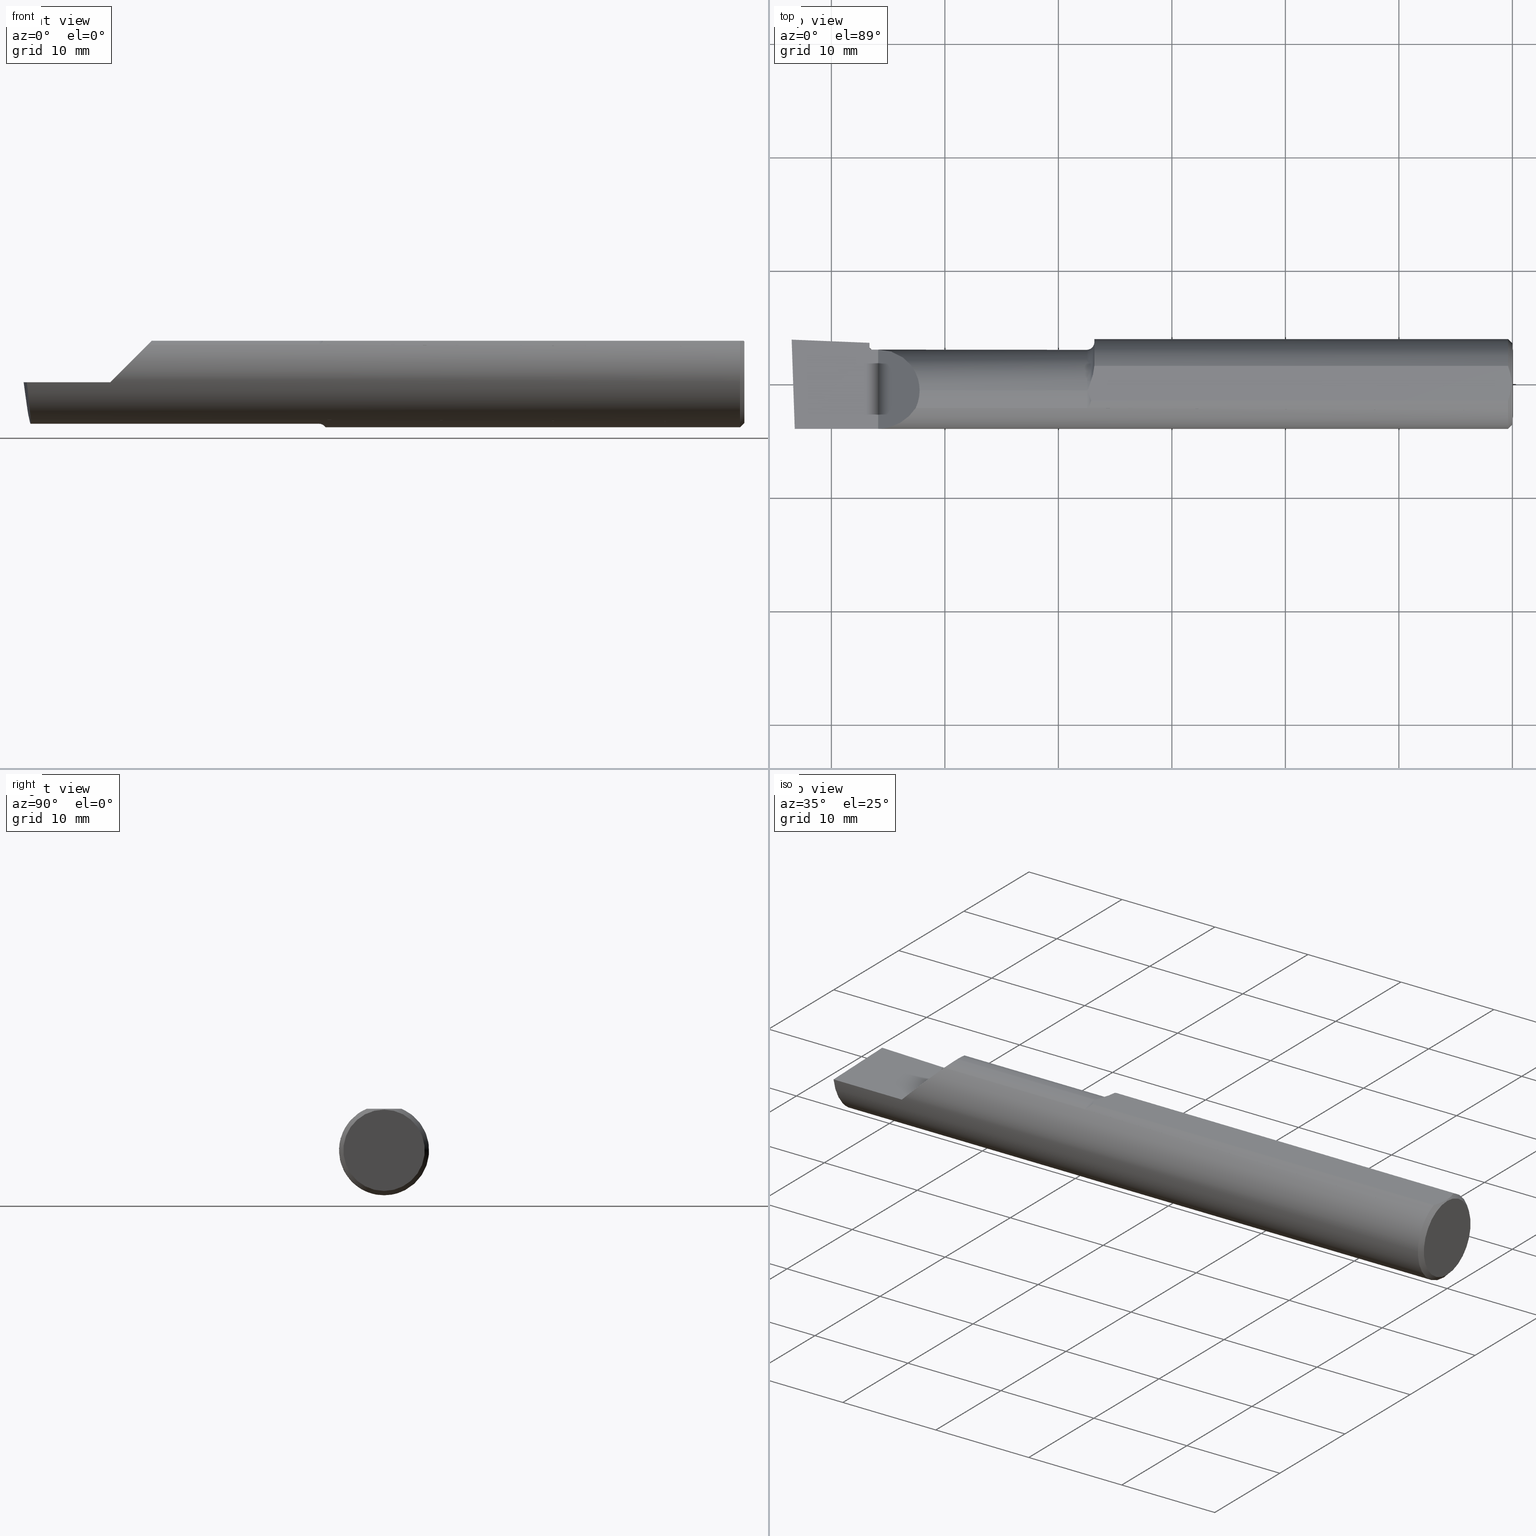
[diagram: canonical four-view strip — front | top / right | iso, engineering-drawing reading convention]
A machine part, canonical four-view strip (front | top / right | iso — engineering-drawing reading convention). The complete STEP part file that produces these views, byte-faithful:
ISO-10303-21;
HEADER;
FILE_DESCRIPTION (( 'STEP AP203' ),
    '1' );
FILE_NAME ('210492-LHBB318.STEP',
    '2024-09-03T19:18:16',
    ( '' ),
    ( '' ),
    'SwSTEP 2.0',
    'SolidWorks 2024',
    '' );
FILE_SCHEMA (( 'CONFIG_CONTROL_DESIGN' ));
ENDSEC;

DATA;
#1 = CARTESIAN_POINT ( 'NONE',  ( -2.199999999999999289, -0.1560999999999999888, 3.826894855694925850E-18 ) ) ;
#2 = PERSON_AND_ORGANIZATION_ROLE ( 'creator' ) ;
#3 = CARTESIAN_POINT ( 'NONE',  ( -2.484581445594568727, 0.09576735185321454125, -0.1091794601134913889 ) ) ;
#4 = CIRCLE ( 'NONE', #111, 0.1688999999999999946 ) ;
#5 = CC_DESIGN_PERSON_AND_ORGANIZATION_ASSIGNMENT ( #715, #708, ( #189 ) ) ;
#6 = EDGE_LOOP ( 'NONE', ( #683, #320, #297, #28, #705 ) ) ;
#7 = DIRECTION ( 'NONE',  ( 0.000000000000000000, 0.000000000000000000, 1.000000000000000000 ) ) ;
#8 = ADVANCED_FACE ( 'NONE', ( #540 ), #366, .T. ) ;
#9 = CARTESIAN_POINT ( 'NONE',  ( -1.473482932671292822, -0.08569999999999937390, -0.1304711462354803675 ) ) ;
#10 = DIRECTION ( 'NONE',  ( 0.000000000000000000, 0.000000000000000000, 1.000000000000000000 ) ) ;
#11 = CALENDAR_DATE ( 2024, 3, 9 ) ;
#12 = EDGE_CURVE ( 'NONE', #191, #582, #621, .T. ) ;
#13 = LINE ( 'NONE', #735, #565 ) ;
#14 = PERSON_AND_ORGANIZATION ( #158, #416 ) ;
#15 = CARTESIAN_POINT ( 'NONE',  ( -2.479018954091639415, 0.02568722648642992809, -0.1346865397607137915 ) ) ;
#16 = COORDINATED_UNIVERSAL_TIME_OFFSET ( 8, 0, .BEHIND. ) ;
#17 = CARTESIAN_POINT ( 'NONE',  ( -2.484581445594568727, 0.09576735185321454125, -0.1091794601134913889 ) ) ;
#18 = CARTESIAN_POINT ( 'NONE',  ( -2.219999999999999751, 0.1189000000000001583, 3.826894855694927391E-18 ) ) ;
#19 = DIRECTION ( 'NONE',  ( 0.000000000000000000, 0.000000000000000000, 1.000000000000000000 ) ) ;
#20 = CARTESIAN_POINT ( 'NONE',  ( -2.500000000000000000, 0.1536194554637218546, 0.000000000000000000 ) ) ;
#21 = ORIENTED_EDGE ( 'NONE', *, *, #534, .T. ) ;
#22 = ORIENTED_EDGE ( 'NONE', *, *, #396, .T. ) ;
#23 = FACE_OUTER_BOUND ( 'NONE', #379, .T. ) ;
#24 = ADVANCED_FACE ( 'NONE', ( #220 ), #290, .F. ) ;
#25 = ORIENTED_EDGE ( 'NONE', *, *, #215, .F. ) ;
#26 = CARTESIAN_POINT ( 'NONE',  ( -2.229999999999999538, 0.1891210000000000668, 0.000000000000000000 ) ) ;
#27 = AXIS2_PLACEMENT_3D ( 'NONE', #26, #258, #503 ) ;
#28 = ORIENTED_EDGE ( 'NONE', *, *, #88, .F. ) ;
#29 = VERTEX_POINT ( 'NONE', #694 ) ;
#30 = AXIS2_PLACEMENT_3D ( 'NONE', #460, #115, #650 ) ;
#31 = CARTESIAN_POINT ( 'NONE',  ( -1.452458313762935438, 4.840126649484621828E-13, -0.1560999999999999888 ) ) ;
#32 = EDGE_CURVE ( 'NONE', #623, #436, #209, .T. ) ;
#33 = CARTESIAN_POINT ( 'NONE',  ( -2.476130359589496788, -0.02500000000000002220, -0.1439000000000001112 ) ) ;
#34 = ORIENTED_EDGE ( 'NONE', *, *, #553, .T. ) ;
#35 = CIRCLE ( 'NONE', #323, 0.1560999999999999888 ) ;
#36 = ORIENTED_EDGE ( 'NONE', *, *, #337, .F. ) ;
#37 = EDGE_CURVE ( 'NONE', #448, #57, #388, .T. ) ;
#38 = CARTESIAN_POINT ( 'NONE',  ( -2.500000000000000000, 0.1536194554637218546, 0.000000000000000000 ) ) ;
#39 = CARTESIAN_POINT ( 'NONE',  ( -2.229999999999999538, 0.1560999999999999888, 3.826894855694925850E-18 ) ) ;
#40 = CC_DESIGN_APPROVAL ( #346, ( #511 ) ) ;
#41 = EDGE_CURVE ( 'NONE', #622, #596, #372, .T. ) ;
#42 = DIRECTION ( 'NONE',  ( 1.000000000000000000, -0.000000000000000000, -0.000000000000000000 ) ) ;
#43 = DESIGN_CONTEXT ( 'detailed design', #321, 'design' ) ;
#44 = VERTEX_POINT ( 'NONE', #418 ) ;
#45 = CARTESIAN_POINT ( 'NONE',  ( -1.471844053232376659, -0.02500000000003148315, 0.1440999999999999504 ) ) ;
#46 = DIRECTION ( 'NONE',  ( 0.000000000000000000, 1.000000000000000000, 0.000000000000000000 ) ) ;
#47 = ORIENTED_EDGE ( 'NONE', *, *, #668, .T. ) ;
#48 = AXIS2_PLACEMENT_3D ( 'NONE', #289, #526, #521 ) ;
#49 = DIRECTION ( 'NONE',  ( 0.000000000000000000, 0.000000000000000000, 1.000000000000000000 ) ) ;
#50 = ORIENTED_EDGE ( 'NONE', *, *, #500, .T. ) ;
#51 = ORIENTED_EDGE ( 'NONE', *, *, #145, .F. ) ;
#52 = LENGTH_MEASURE_WITH_UNIT ( LENGTH_MEASURE( 0.02539999999999999897 ), #343 );
#53 = CARTESIAN_POINT ( 'NONE',  ( -2.229999999999999538, -0.02500000000000000486, 0.000000000000000000 ) ) ;
#54 = ORIENTED_EDGE ( 'NONE', *, *, #680, .F. ) ;
#55 = ADVANCED_FACE ( 'NONE', ( #110 ), #675, .T. ) ;
#56 = DIRECTION ( 'NONE',  ( -1.000000000000000000, -1.742939658942782065E-16, 0.000000000000000000 ) ) ;
#57 = VERTEX_POINT ( 'NONE', #1 ) ;
#58 = CARTESIAN_POINT ( 'NONE',  ( -0.01500000000000024925, 0.000000000000000000, 0.000000000000000000 ) ) ;
#59 = VECTOR ( 'NONE', #42, 39.37007874015748143 ) ;
#60 = PRODUCT ( '210492-LHBB318', '210492-LHBB318', '', ( #655 ) ) ;
#61 = EDGE_CURVE ( 'NONE', #626, #254, #611, .T. ) ;
#62 = CIRCLE ( 'NONE', #593, 0.009999999999999892655 ) ;
#63 = CARTESIAN_POINT ( 'NONE',  ( -1.468148277183320971, -0.03981762987256244612, 0.1440999999999999504 ) ) ;
#64 = CARTESIAN_POINT ( 'NONE',  ( -1.450730260234562641, 0.03041887409375948828, -0.1532281963622442456 ) ) ;
#65 = CARTESIAN_POINT ( 'NONE',  ( -2.500000000000000000, 0.02421669862456291358, -0.1352217681310924902 ) ) ;
#66 = EDGE_CURVE ( 'NONE', #216, #140, #607, .T. ) ;
#67 = CARTESIAN_POINT ( 'NONE',  ( -2.056100000000001149, -0.04605394310600768176, 0.1439000000000001112 ) ) ;
#68 = EDGE_CURVE ( 'NONE', #57, #191, #234, .T. ) ;
#69 = ORIENTED_EDGE ( 'NONE', *, *, #215, .T. ) ;
#70 = APPROVAL_PERSON_ORGANIZATION ( #14, #515, #124 ) ;
#71 = CARTESIAN_POINT ( 'NONE',  ( -2.482667168175673122, -0.1560999999999999888, -0.05371247775559874482 ) ) ;
#72 = B_SPLINE_CURVE_WITH_KNOTS ( 'NONE', 3,
 ( #368, #9, #486, #653, #484, #353, #710, #122, #182, #475, #605, #73 ),
 .UNSPECIFIED., .F., .F.,
 ( 4, 2, 2, 2, 2, 4 ),
 ( 1.966861314630388892E-07, 0.0001139043861855418911, 0.0002276120862396207255, 0.0004550274863477778522, 0.0009098582865640920513, 0.001819519886996720341 ),
 .UNSPECIFIED. ) ;
#73 = CARTESIAN_POINT ( 'NONE',  ( -1.454862523376329930, -0.02500000000022618157, -0.1540850739039595352 ) ) ;
#74 = CARTESIAN_POINT ( 'NONE',  ( -0.004112937275917732775, 0.02048434576366622156, 0.1440999999999999226 ) ) ;
#75 = SECURITY_CLASSIFICATION_LEVEL ( 'unclassified' ) ;
#76 = AXIS2_PLACEMENT_3D ( 'NONE', #648, #469, #462 ) ;
#77 = PERSON_AND_ORGANIZATION ( #158, #416 ) ;
#78 = LOCAL_TIME ( 12, 18, 16.00000000000000000, #304 ) ;
#79 = B_SPLINE_CURVE_WITH_KNOTS ( 'NONE', 3,
 ( #275, #517, #271, #514, #208, #637 ),
 .UNSPECIFIED., .F., .F.,
 ( 4, 2, 4 ),
 ( 0.005420603660124381773, 0.006200393792043773673, 0.006980183923963165574 ),
 .UNSPECIFIED. ) ;
#80 = CARTESIAN_POINT ( 'NONE',  ( -2.199999999999999289, 0.1189000000000001028, 3.826894855694925850E-18 ) ) ;
#81 = EDGE_LOOP ( 'NONE', ( #162, #470, #148, #302, #328 ) ) ;
#82 = VECTOR ( 'NONE', #714, 39.37007874015748143 ) ;
#83 = ORIENTED_EDGE ( 'NONE', *, *, #587, .F. ) ;
#84 = CARTESIAN_POINT ( 'NONE',  ( -1.469508261956889994, -0.08224208440130481579, 0.1326837206089797327 ) ) ;
#85 = EDGE_CURVE ( 'NONE', #596, #44, #722, .T. ) ;
#86 = ADVANCED_BREP_SHAPE_REPRESENTATION ( '210492-LHBB318', ( #402, #270 ), #662 ) ;
#87 = EDGE_LOOP ( 'NONE', ( #94, #285, #47, #445, #559, #316, #493, #692, #222, #157, #342 ) ) ;
#88 = EDGE_CURVE ( 'NONE', #216, #197, #62, .T. ) ;
#89 = CARTESIAN_POINT ( 'NONE',  ( -1.450000000000000178, 0.07070000000000016549, -0.1391715488165593539 ) ) ;
#90 = ORIENTED_EDGE ( 'NONE', *, *, #609, .F. ) ;
#91 = DIRECTION ( 'NONE',  ( 1.000000000000000000, -0.000000000000000000, -0.000000000000000000 ) ) ;
#92 = DIRECTION ( 'NONE',  ( -1.000000000000000000, 0.000000000000000000, 0.000000000000000000 ) ) ;
#93 = AXIS2_PLACEMENT_3D ( 'NONE', #681, #153, #399 ) ;
#94 = ORIENTED_EDGE ( 'NONE', *, *, #687, .T. ) ;
#95 = ORIENTED_EDGE ( 'NONE', *, *, #143, .T. ) ;
#96 = CARTESIAN_POINT ( 'NONE',  ( -2.494605827839287304, 0.1454635380981003923, -0.04160498188424495425 ) ) ;
#97 = APPLICATION_CONTEXT ( 'configuration controlled 3d designs of mechanical parts and assemblies' ) ;
#98 = DIRECTION ( 'NONE',  ( 0.000000000000000000, 0.000000000000000000, -1.000000000000000000 ) ) ;
#99 = CIRCLE ( 'NONE', #610, 0.1560999999999999888 ) ;
#100 = VERTEX_POINT ( 'NONE', #390 ) ;
#101 = FACE_OUTER_BOUND ( 'NONE', #406, .T. ) ;
#102 = LINE ( 'NONE', #39, #370 ) ;
#103 = CC_DESIGN_PERSON_AND_ORGANIZATION_ASSIGNMENT ( #359, #2, ( #511 ) ) ;
#104 = ORIENTED_EDGE ( 'NONE', *, *, #112, .T. ) ;
#105 = CARTESIAN_POINT ( 'NONE',  ( 0.000000000000000000, 1.727976633596912104E-17, -0.1410999999999997534 ) ) ;
#106 = DIRECTION ( 'NONE',  ( -1.000000000000000000, 6.829619984160658046E-18, 0.000000000000000000 ) ) ;
#107 = ORIENTED_EDGE ( 'NONE', *, *, #461, .T. ) ;
#108 = PLANE ( 'NONE',  #349 ) ;
#109 = VERTEX_POINT ( 'NONE', #492 ) ;
#110 = FACE_OUTER_BOUND ( 'NONE', #677, .T. ) ;
#111 = AXIS2_PLACEMENT_3D ( 'NONE', #355, #273, #49 ) ;
#112 = EDGE_CURVE ( 'NONE', #254, #282, #250, .T. ) ;
#113 = DIRECTION ( 'NONE',  ( 0.000000000000000000, 0.000000000000000000, 1.000000000000000000 ) ) ;
#114 = CARTESIAN_POINT ( 'NONE',  ( -1.464985600317321612, -0.04846509284843828619, 0.1440999999999999504 ) ) ;
#115 = DIRECTION ( 'NONE',  ( 1.000000000000000000, -0.000000000000000000, -0.000000000000000000 ) ) ;
#116 = DIRECTION ( 'NONE',  ( 0.000000000000000000, 0.000000000000000000, 1.000000000000000000 ) ) ;
#117 = ADVANCED_FACE ( 'NONE', ( #133 ), #361, .F. ) ;
#118 = CARTESIAN_POINT ( 'NONE',  ( -1.450214390677043941, 0.04807667021748287389, -0.1486381104007177822 ) ) ;
#119 = PERSON_AND_ORGANIZATION ( #158, #416 ) ;
#120 = DIRECTION ( 'NONE',  ( 0.000000000000000000, 0.000000000000000000, 1.000000000000000000 ) ) ;
#121 = CIRCLE ( 'NONE', #558, 0.1411000000000002530 ) ;
#122 = CARTESIAN_POINT ( 'NONE',  ( -1.463126895908789304, -0.06887538526317449339, -0.1401954838979543316 ) ) ;
#123 = DIRECTION ( 'NONE',  ( -1.000000000000000000, 0.000000000000000000, 0.000000000000000000 ) ) ;
#124 = APPROVAL_ROLE ( '' ) ;
#125 = CARTESIAN_POINT ( 'NONE',  ( -1.474999999999999867, -0.02500000000000004649, -0.1688999999999999946 ) ) ;
#126 = PRODUCT_RELATED_PRODUCT_CATEGORY ( 'detail', '', ( #60 ) ) ;
#127 = CARTESIAN_POINT ( 'NONE',  ( -1.469201185154610068, -0.03693468910894925211, 0.1440999999999999504 ) ) ;
#128 = DIRECTION ( 'NONE',  ( 1.000000000000000000, -0.000000000000000000, -0.000000000000000000 ) ) ;
#129 = VECTOR ( 'NONE', #649, 39.37007874015748143 ) ;
#130 = CARTESIAN_POINT ( 'NONE',  ( -0.008307085287356189701, 0.04068523568973313881, 0.1441000000000000059 ) ) ;
#131 = PERSON_AND_ORGANIZATION ( #158, #416 ) ;
#132 = CIRCLE ( 'NONE', #590, 0.02499999999999993894 ) ;
#133 = FACE_OUTER_BOUND ( 'NONE', #619, .T. ) ;
#134 = B_SPLINE_CURVE_WITH_KNOTS ( 'NONE', 3,
 ( #455, #686, #339, #156, #574, #84, #322, #449, #494, #155 ),
 .UNSPECIFIED., .F., .F.,
 ( 4, 2, 2, 2, 4 ),
 ( 5.292347910167346680E-07, 0.0004247077115782347829, 0.0006367969499718469746, 0.0007428415691686530162, 0.0008488861883654591663 ),
 .UNSPECIFIED. ) ;
#135 = COORDINATED_UNIVERSAL_TIME_OFFSET ( 8, 0, .BEHIND. ) ;
#136 = DIRECTION ( 'NONE',  ( 0.000000000000000000, -0.3420201433256629397, 0.9396926207859105373 ) ) ;
#137 = EDGE_CURVE ( 'NONE', #100, #566, #319, .T. ) ;
#138 = AXIS2_PLACEMENT_3D ( 'NONE', #53, #693, #120 ) ;
#139 = DIRECTION ( 'NONE',  ( 1.742939658942782065E-16, -1.000000000000000000, 0.000000000000000000 ) ) ;
#140 = VERTEX_POINT ( 'NONE', #335 ) ;
#141 = CARTESIAN_POINT ( 'NONE',  ( -2.475676552398977215, -0.08569999999999922125, -0.1304711462354804230 ) ) ;
#142 = ORIENTED_EDGE ( 'NONE', *, *, #615, .F. ) ;
#143 = EDGE_CURVE ( 'NONE', #569, #596, #132, .T. ) ;
#144 = CARTESIAN_POINT ( 'NONE',  ( -1.453095797791018828, -0.008405471570478762616, -0.1561000000000260235 ) ) ;
#145 = EDGE_CURVE ( 'NONE', #582, #698, #465, .T. ) ;
#146 = VERTEX_POINT ( 'NONE', #509 ) ;
#147 = DIRECTION ( 'NONE',  ( 1.000000000000000000, -0.000000000000000000, -0.000000000000000000 ) ) ;
#148 = ORIENTED_EDGE ( 'NONE', *, *, #218, .F. ) ;
#149 = ORIENTED_EDGE ( 'NONE', *, *, #249, .F. ) ;
#150 = CYLINDRICAL_SURFACE ( 'NONE', #729, 0.1439000000000001112 ) ;
#151 = CARTESIAN_POINT ( 'NONE',  ( -1.474999999999999867, -0.02500000000000002220, 0.000000000000000000 ) ) ;
#152 = VERTEX_POINT ( 'NONE', #20 ) ;
#153 = DIRECTION ( 'NONE',  ( 1.000000000000000000, 1.742939658942782065E-16, 0.000000000000000000 ) ) ;
#154 = ORIENTED_EDGE ( 'NONE', *, *, #32, .F. ) ;
#155 = CARTESIAN_POINT ( 'NONE',  ( -1.474999999999999867, -0.08569999999999944329, 0.1304711462354802842 ) ) ;
#156 = CARTESIAN_POINT ( 'NONE',  ( -1.466324726609743001, -0.07684337455390498339, 0.1359013108991525554 ) ) ;
#157 = ORIENTED_EDGE ( 'NONE', *, *, #12, .T. ) ;
#158 = PERSON ( 'UNSPECIFIED', 'UNSPECIFIED', 'UNSPECIFIED', ('UNSPECIFIED'), ('UNSPECIFIED'), ('UNSPECIFIED') ) ;
#159 = FACE_OUTER_BOUND ( 'NONE', #688, .T. ) ;
#160 = CARTESIAN_POINT ( 'NONE',  ( -2.229999999999999538, 0.1026580227690539748, -0.08595719412995683761 ) ) ;
#161 = CC_DESIGN_APPROVAL ( #515, ( #691 ) ) ;
#162 = ORIENTED_EDGE ( 'NONE', *, *, #609, .T. ) ;
#163 = EDGE_CURVE ( 'NONE', #582, #617, #13, .T. ) ;
#164 = LINE ( 'NONE', #105, #583 ) ;
#165 = VECTOR ( 'NONE', #684, 39.37007874015748143 ) ;
#166 = CARTESIAN_POINT ( 'NONE',  ( -1.450348850910508469, 0.04224677410306576508, -0.1503974671975661925 ) ) ;
#167 = CARTESIAN_POINT ( 'NONE',  ( -1.450050504025077291, 0.06001999666777734638, 0.1440999999999999504 ) ) ;
#168 = B_SPLINE_CURVE_WITH_KNOTS ( 'NONE', 3,
 ( #490, #721, #190, #378 ),
 .UNSPECIFIED., .F., .F.,
 ( 4, 4 ),
 ( 0.01176971488481076342, 0.01863345644698705117 ),
 .UNSPECIFIED. ) ;
#169 = CARTESIAN_POINT ( 'NONE',  ( -2.229814999632692363, 0.07017856946061030998, -0.1184930152355837263 ) ) ;
#170 = ORIENTED_EDGE ( 'NONE', *, *, #711, .T. ) ;
#171 = EDGE_CURVE ( 'NONE', #739, #140, #395, .T. ) ;
#172 = APPROVAL_PERSON_ORGANIZATION ( #295, #346, #712 ) ;
#173 = DIRECTION ( 'NONE',  ( 1.000000000000000000, -0.000000000000000000, -0.000000000000000000 ) ) ;
#174 = ORIENTED_EDGE ( 'NONE', *, *, #68, .F. ) ;
#175 = CARTESIAN_POINT ( 'NONE',  ( -2.229294457104739724, 0.06238674940841056060, -0.1213290058053428516 ) ) ;
#176 = ORIENTED_EDGE ( 'NONE', *, *, #341, .F. ) ;
#177 = CARTESIAN_POINT ( 'NONE',  ( -1.451609734521864148, 0.01225372253022634361, -0.1557388326591280514 ) ) ;
#178 = CALENDAR_DATE ( 2024, 3, 9 ) ;
#179 = CARTESIAN_POINT ( 'NONE',  ( -2.229814999632692363, 0.07017856946061030998, -0.1184930152355837263 ) ) ;
#180 = CARTESIAN_POINT ( 'NONE',  ( -2.229999999999999538, 0.1026580227690539748, -0.08595719412995683761 ) ) ;
#181 = DATE_AND_TIME ( #11, #496 ) ;
#182 = CARTESIAN_POINT ( 'NONE',  ( -1.461707069840809892, -0.06372296352525426422, -0.1426158673174760527 ) ) ;
#183 = CARTESIAN_POINT ( 'NONE',  ( -2.489266190342419360, -0.1561000000000000165, 3.826894855694925850E-18 ) ) ;
#184 = APPROVAL_STATUS ( 'not_yet_approved' ) ;
#185 = FACE_OUTER_BOUND ( 'NONE', #332, .T. ) ;
#186 = DIRECTION ( 'NONE',  ( -1.000000000000000000, -0.000000000000000000, -0.000000000000000000 ) ) ;
#187 = DATE_TIME_ROLE ( 'classification_date' ) ;
#188 = DIRECTION ( 'NONE',  ( 0.000000000000000000, 1.000000000000000000, 0.000000000000000000 ) ) ;
#189 = PRODUCT_DEFINITION ( 'UNKNOWN', '', #511, #43 ) ;
#190 = CARTESIAN_POINT ( 'NONE',  ( -2.409999853432402528, 0.1499395137171538051, 3.826894855694925850E-18 ) ) ;
#191 = VERTEX_POINT ( 'NONE', #183 ) ;
#192 = EDGE_CURVE ( 'NONE', #698, #739, #413, .T. ) ;
#193 = EDGE_LOOP ( 'NONE', ( #280, #95, #730, #447 ) ) ;
#194 = LOCAL_TIME ( 12, 18, 16.00000000000000000, #135 ) ;
#195 = DIRECTION ( 'NONE',  ( -1.000000000000000000, 0.000000000000000000, 0.000000000000000000 ) ) ;
#196 = ADVANCED_FACE ( 'NONE', ( #307 ), #330, .F. ) ;
#197 = VERTEX_POINT ( 'NONE', #312 ) ;
#198 = LINE ( 'NONE', #329, #287 ) ;
#199 = CC_DESIGN_DATE_AND_TIME_ASSIGNMENT ( #371, #187, ( #691 ) ) ;
#200 = CARTESIAN_POINT ( 'NONE',  ( -2.069528853764522669, -0.08570000000000299600, 0.1304711462354783136 ) ) ;
#201 = ORIENTED_EDGE ( 'NONE', *, *, #171, .F. ) ;
#202 = ORIENTED_EDGE ( 'NONE', *, *, #66, .F. ) ;
#203 = CARTESIAN_POINT ( 'NONE',  ( -2.229999999999999538, 0.1425688816766004785, 0.000000000000000000 ) ) ;
#204 = AXIS2_PLACEMENT_3D ( 'NONE', #529, #441, #246 ) ;
#205 = DIRECTION ( 'NONE',  ( 1.000000000000000000, -0.000000000000000000, -0.000000000000000000 ) ) ;
#206 = EDGE_LOOP ( 'NONE', ( #467, #90, #107, #201 ) ) ;
#207 = CARTESIAN_POINT ( 'NONE',  ( -2.056100000000001149, -0.02500000000000000486, 0.1439000000000001112 ) ) ;
#208 = CARTESIAN_POINT ( 'NONE',  ( -0.01133355301893011931, -0.05048430180739575668, 0.1440999999999999781 ) ) ;
#209 = B_SPLINE_CURVE_WITH_KNOTS ( 'NONE', 3,
 ( #594, #707, #177, #422, #64, #166, #118, #588, #358, #410 ),
 .UNSPECIFIED., .F., .F.,
 ( 4, 2, 2, 2, 4 ),
 ( 0.002475127250578835168, 0.002949952465898010752, 0.003424777681217186336, 0.003899602896536361919, 0.004374428111855537503 ),
 .UNSPECIFIED. ) ;
#210 = VECTOR ( 'NONE', #195, 39.37007874015748143 ) ;
#211 = ORIENTED_EDGE ( 'NONE', *, *, #506, .T. ) ;
#212 = DIRECTION ( 'NONE',  ( -1.000000000000000000, 0.000000000000000000, 0.000000000000000000 ) ) ;
#213 = CARTESIAN_POINT ( 'NONE',  ( -1.450050504025077291, 0.06001999666777734638, 0.1440999999999999504 ) ) ;
#214 = AXIS2_PLACEMENT_3D ( 'NONE', #278, #407, #116 ) ;
#215 = EDGE_CURVE ( 'NONE', #29, #639, #121, .T. ) ;
#216 = VERTEX_POINT ( 'NONE', #18 ) ;
#217 = CYLINDRICAL_SURFACE ( 'NONE', #279, 0.1439000000000001112 ) ;
#218 = EDGE_CURVE ( 'NONE', #282, #152, #168, .T. ) ;
#219 = B_SPLINE_CURVE_WITH_KNOTS ( 'NONE', 3,
 ( #380, #245, #433, #17 ),
 .UNSPECIFIED., .F., .F.,
 ( 4, 4 ),
 ( 0.0005609392357388221168, 0.007068866004979952253 ),
 .UNSPECIFIED. ) ;
#220 = FACE_OUTER_BOUND ( 'NONE', #193, .T. ) ;
#221 = CARTESIAN_POINT ( 'NONE',  ( -1.463353959584570596, 0.002866311517161839687, 0.1440999999999999504 ) ) ;
#222 = ORIENTED_EDGE ( 'NONE', *, *, #68, .T. ) ;
#223 = DIRECTION ( 'NONE',  ( 0.000000000000000000, 0.000000000000000000, -1.000000000000000000 ) ) ;
#224 = EDGE_CURVE ( 'NONE', #725, #350, #267, .T. ) ;
#225 = CLOSED_SHELL ( 'NONE', ( #196, #24, #55, #561, #663, #8, #661, #638, #423, #365, #237, #444, #387, #450, #616, #523, #117, #479, #301, #731 ) ) ;
#226 = EDGE_LOOP ( 'NONE', ( #421, #733, #352, #478 ) ) ;
#227 = CARTESIAN_POINT ( 'NONE',  ( -2.219999999999999751, -0.02500000000000000486, 0.000000000000000000 ) ) ;
#228 = PERSON_AND_ORGANIZATION ( #158, #416 ) ;
#229 = CARTESIAN_POINT ( 'NONE',  ( -1.454082834115635547, 0.03088512097718992475, 0.1440999999999999781 ) ) ;
#230 = CARTESIAN_POINT ( 'NONE',  ( -2.499553225608604823, 0.1407279727905360600, 3.826894855694925850E-18 ) ) ;
#231 = ORIENTED_EDGE ( 'NONE', *, *, #224, .T. ) ;
#232 = PLANE ( 'NONE',  #743 ) ;
#233 = CARTESIAN_POINT ( 'NONE',  ( -2.478902233428061486, 0.02421669862456291358, -0.1352217681310924902 ) ) ;
#234 = LINE ( 'NONE', #658, #530 ) ;
#235 = CALENDAR_DATE ( 2024, 3, 9 ) ;
#236 = PLANE ( 'NONE',  #471 ) ;
#237 = ADVANCED_FACE ( 'NONE', ( #613 ), #394, .T. ) ;
#238 = CARTESIAN_POINT ( 'NONE',  ( -2.229999999999999538, -0.05609999999999996934, 0.04000000000000000083 ) ) ;
#239 = CARTESIAN_POINT ( 'NONE',  ( -0.01500000000000024925, 0.000000000000000000, 0.000000000000000000 ) ) ;
#240 = AXIS2_PLACEMENT_3D ( 'NONE', #125, #309, #364 ) ;
#241 = EDGE_CURVE ( 'NONE', #698, #44, #571, .T. ) ;
#242 = CARTESIAN_POINT ( 'NONE',  ( -1.450050504025077291, 0.06001999666777734638, 0.1440999999999999504 ) ) ;
#243 = DIRECTION ( 'NONE',  ( 1.000000000000000000, -0.000000000000000000, -0.000000000000000000 ) ) ;
#244 = CALENDAR_DATE ( 2024, 3, 9 ) ;
#245 = CARTESIAN_POINT ( 'NONE',  ( -2.314562659517192422, 0.08023483548401062759, -0.1148328337352035183 ) ) ;
#246 = DIRECTION ( 'NONE',  ( 0.000000000000000000, 0.000000000000000000, 1.000000000000000000 ) ) ;
#247 = CC_DESIGN_PERSON_AND_ORGANIZATION_ASSIGNMENT ( #77, #532, ( #60 ) ) ;
#248 = FACE_OUTER_BOUND ( 'NONE', #226, .T. ) ;
#249 = EDGE_CURVE ( 'NONE', #560, #727, #736, .T. ) ;
#250 = CIRCLE ( 'NONE', #685, 0.2026556797788580666 ) ;
#251 = CARTESIAN_POINT ( 'NONE',  ( -0.003000000000000205194, 0.01020794464685660825, 0.1440999999999999781 ) ) ;
#252 = ORIENTED_EDGE ( 'NONE', *, *, #192, .F. ) ;
#253 = EDGE_CURVE ( 'NONE', #197, #282, #102, .T. ) ;
#254 = VERTEX_POINT ( 'NONE', #160 ) ;
#255 = AXIS2_PLACEMENT_3D ( 'NONE', #292, #56, #480 ) ;
#256 = DIRECTION ( 'NONE',  ( 0.000000000000000000, 0.000000000000000000, 1.000000000000000000 ) ) ;
#257 = ORIENTED_EDGE ( 'NONE', *, *, #615, .T. ) ;
#258 = DIRECTION ( 'NONE',  ( 1.000000000000000000, 0.000000000000000000, -0.000000000000000000 ) ) ;
#259 = AXIS2_PLACEMENT_3D ( 'NONE', #603, #128, #696 ) ;
#260 = ORIENTED_EDGE ( 'NONE', *, *, #192, .T. ) ;
#261 = ORIENTED_EDGE ( 'NONE', *, *, #313, .F. ) ;
#262 = DIRECTION ( 'NONE',  ( -0.1219414168599299575, 0.000000000000000000, 0.9925372994775525370 ) ) ;
#263 = DIRECTION ( 'NONE',  ( 1.000000000000000000, -0.000000000000000000, -0.000000000000000000 ) ) ;
#264 = CIRCLE ( 'NONE', #138, 0.1539000000000001200 ) ;
#265 = EDGE_CURVE ( 'NONE', #566, #109, #79, .T. ) ;
#266 = ORIENTED_EDGE ( 'NONE', *, *, #41, .T. ) ;
#267 =( BOUNDED_CURVE ( )  B_SPLINE_CURVE ( 3, ( #80, #457, #345, #578 ),
 .UNSPECIFIED., .F., .T. ) 
 B_SPLINE_CURVE_WITH_KNOTS ( ( 4, 4 ),
 ( 4.712388980384689674, 6.283185307179586232 ),
 .UNSPECIFIED. ) 
 CURVE ( )  GEOMETRIC_REPRESENTATION_ITEM ( )  RATIONAL_B_SPLINE_CURVE ( ( 1.000000000000000000, 0.8047378541243649375, 0.8047378541243649375, 1.000000000000000000 ) ) 
 REPRESENTATION_ITEM ( '' )  );
#268 = ORIENTED_EDGE ( 'NONE', *, *, #587, .T. ) ;
#269 = FACE_OUTER_BOUND ( 'NONE', #6, .T. ) ;
#270 = AXIS2_PLACEMENT_3D ( 'NONE', #363, #7, #600 ) ;
#271 = CARTESIAN_POINT ( 'NONE',  ( -0.004121137220901559609, -0.02053748477038522605, 0.1441000000000000059 ) ) ;
#272 = APPLICATION_PROTOCOL_DEFINITION ( 'international standard', 'config_control_design', 1994, #97 ) ;
#273 = DIRECTION ( 'NONE',  ( -1.000000000000000000, 0.000000000000000000, 0.000000000000000000 ) ) ;
#274 = EDGE_CURVE ( 'NONE', #670, #622, #134, .T. ) ;
#275 = CARTESIAN_POINT ( 'NONE',  ( -0.003000000000000204760, 6.421145895685612357E-21, 0.1440999999999999504 ) ) ;
#276 = ORIENTED_EDGE ( 'NONE', *, *, #265, .T. ) ;
#277 = EDGE_CURVE ( 'NONE', #146, #623, #537, .T. ) ;
#278 = CARTESIAN_POINT ( 'NONE',  ( -1.474999999999999867, -0.02500000000000000486, 0.000000000000000000 ) ) ;
#279 = AXIS2_PLACEMENT_3D ( 'NONE', #281, #640, #695 ) ;
#280 = ORIENTED_EDGE ( 'NONE', *, *, #711, .F. ) ;
#281 = CARTESIAN_POINT ( 'NONE',  ( 0.000000000000000000, -0.02500000000000000486, 0.000000000000000000 ) ) ;
#282 = VERTEX_POINT ( 'NONE', #203 ) ;
#283 = ORIENTED_EDGE ( 'NONE', *, *, #137, .T. ) ;
#284 = DIRECTION ( 'NONE',  ( -0.7071067811865483499, 8.659560562354922997E-17, -0.7071067811865467956 ) ) ;
#285 = ORIENTED_EDGE ( 'NONE', *, *, #277, .T. ) ;
#286 = PLANE ( 'NONE',  #255 ) ;
#287 = VECTOR ( 'NONE', #630, 39.37007874015748143 ) ;
#288 = CARTESIAN_POINT ( 'NONE',  ( -2.069528853764522669, -0.08570000000000299600, 0.1304711462354783136 ) ) ;
#289 = CARTESIAN_POINT ( 'NONE',  ( 2.500000000000000000, 0.06250000000000000000, 0.1440999999999999504 ) ) ;
#290 = TOROIDAL_SURFACE ( 'NONE', #30, 0.1688999999999999946, 0.02499999999999993894 ) ;
#291 = ORIENTED_EDGE ( 'NONE', *, *, #253, .T. ) ;
#292 = CARTESIAN_POINT ( 'NONE',  ( -9.678837909573454915E-17, 0.2776584335525523750, -0.1560999999999999888 ) ) ;
#293 = DIMENSIONAL_EXPONENTS ( 1.000000000000000000, 0.000000000000000000, 0.000000000000000000, 0.000000000000000000, 0.000000000000000000, 0.000000000000000000, 0.000000000000000000 ) ;
#294 = CARTESIAN_POINT ( 'NONE',  ( -2.099017382551549460, -0.1305938407426061876, 0.1009826174484516337 ) ) ;
#295 = PERSON_AND_ORGANIZATION ( #158, #416 ) ;
#296 = CYLINDRICAL_SURFACE ( 'NONE', #204, 0.1439000000000001112 ) ;
#297 = ORIENTED_EDGE ( 'NONE', *, *, #474, .F. ) ;
#298 = CARTESIAN_POINT ( 'NONE',  ( -2.199999999999999289, 0.1189000000000001028, 3.826894855694925850E-18 ) ) ;
#299 = COORDINATED_UNIVERSAL_TIME_OFFSET ( 8, 0, .BEHIND. ) ;
#300 = CARTESIAN_POINT ( 'NONE',  ( -1.474999999999999867, -0.08569999999999930451, -0.1304711462354803397 ) ) ;
#301 = ADVANCED_FACE ( 'NONE', ( #624 ), #627, .T. ) ;
#302 = ORIENTED_EDGE ( 'NONE', *, *, #112, .F. ) ;
#303 = VECTOR ( 'NONE', #673, 39.37007874015748143 ) ;
#304 = COORDINATED_UNIVERSAL_TIME_OFFSET ( 8, 0, .BEHIND. ) ;
#305 = DIRECTION ( 'NONE',  ( 0.000000000000000000, -0.9396926207859105373, -0.3420201433256629397 ) ) ;
#306 = CARTESIAN_POINT ( 'NONE',  ( -1.471844053232376659, -0.02500000000003148315, 0.1440999999999999504 ) ) ;
#307 = FACE_OUTER_BOUND ( 'NONE', #336, .T. ) ;
#308 = APPROVAL_STATUS ( 'not_yet_approved' ) ;
#309 = DIRECTION ( 'NONE',  ( 0.000000000000000000, -1.000000000000000000, 1.224646799147353207E-16 ) ) ;
#310 = CIRCLE ( 'NONE', #214, 0.1439000000000000556 ) ;
#311 = VECTOR ( 'NONE', #657, 39.37007874015748143 ) ;
#312 = CARTESIAN_POINT ( 'NONE',  ( -2.229999999999999538, 0.1289000000000001256, 0.000000000000000000 ) ) ;
#313 = EDGE_CURVE ( 'NONE', #622, #448, #382, .T. ) ;
#314 = DIRECTION ( 'NONE',  ( -1.000000000000000000, 0.000000000000000000, 0.000000000000000000 ) ) ;
#315 = DIRECTION ( 'NONE',  ( 0.000000000000000000, 0.000000000000000000, 1.000000000000000000 ) ) ;
#316 = ORIENTED_EDGE ( 'NONE', *, *, #274, .T. ) ;
#317 = CIRCLE ( 'NONE', #93, 0.1411000000000002530 ) ;
#318 = AXIS2_PLACEMENT_3D ( 'NONE', #151, #331, #671 ) ;
#319 = B_SPLINE_CURVE_WITH_KNOTS ( 'NONE', 3,
 ( #435, #718, #130, #74, #251, #724 ),
 .UNSPECIFIED., .F., .F.,
 ( 4, 2, 4 ),
 ( 0.003862504283746397583, 0.004641553971935389461, 0.005420603660124381773 ),
 .UNSPECIFIED. ) ;
#320 = ORIENTED_EDGE ( 'NONE', *, *, #61, .T. ) ;
#321 = APPLICATION_CONTEXT ( 'configuration controlled 3d designs of mechanical parts and assemblies' ) ;
#322 = CARTESIAN_POINT ( 'NONE',  ( -1.470308733175472060, -0.08325729668116128857, 0.1320471792325037530 ) ) ;
#323 = AXIS2_PLACEMENT_3D ( 'NONE', #239, #314, #19 ) ;
#324 = VERTEX_POINT ( 'NONE', #618 ) ;
#325 = CC_DESIGN_APPROVAL ( #556, ( #189 ) ) ;
#326 = FACE_OUTER_BOUND ( 'NONE', #542, .T. ) ;
#327 = B_SPLINE_CURVE_WITH_KNOTS ( 'NONE', 3,
 ( #167, #404, #229, #697, #221, #344, #415, #420, #595, #45 ),
 .UNSPECIFIED., .F., .F.,
 ( 4, 2, 2, 2, 4 ),
 ( 0.01301670781631528509, 0.01412932456335375814, 0.01468563293687299640, 0.01496378712363261726, 0.01524194131039223639 ),
 .UNSPECIFIED. ) ;
#328 = ORIENTED_EDGE ( 'NONE', *, *, #61, .F. ) ;
#329 = CARTESIAN_POINT ( 'NONE',  ( -2.199999999999999289, 0.1560999999999999888, 3.826894855694925850E-18 ) ) ;
#330 = TOROIDAL_SURFACE ( 'NONE', #454, 0.1688999999999999946, 0.02499999999999993894 ) ;
#331 = DIRECTION ( 'NONE',  ( 1.000000000000000000, -0.000000000000000000, -0.000000000000000000 ) ) ;
#332 = EDGE_LOOP ( 'NONE', ( #646, #672, #174, #440, #512, #580, #291 ) ) ;
#333 = EDGE_LOOP ( 'NONE', ( #510, #383, #170, #176, #527, #446 ) ) ;
#334 = CARTESIAN_POINT ( 'NONE',  ( -1.453876643924216339, -0.01674057265308588963, -0.1554251497364122214 ) ) ;
#335 = CARTESIAN_POINT ( 'NONE',  ( -2.219999999999999751, 0.02421669862456291358, -0.1352217681310924902 ) ) ;
#336 = EDGE_LOOP ( 'NONE', ( #745, #268, #408, #563, #463, #149, #34, #154 ) ) ;
#337 = EDGE_CURVE ( 'NONE', #639, #29, #317, .T. ) ;
#338 = CARTESIAN_POINT ( 'NONE',  ( 0.000000000000000000, -0.02500000000000000486, 0.000000000000000000 ) ) ;
#339 = CARTESIAN_POINT ( 'NONE',  ( -1.463486186723763405, -0.06993940022577681270, 0.1396536156489262825 ) ) ;
#340 = UNCERTAINTY_MEASURE_WITH_UNIT (LENGTH_MEASURE( 1.000000000000000082E-05 ), #575, 'distance_accuracy_value', 'NONE');
#341 = EDGE_CURVE ( 'NONE', #109, #670, #734, .T. ) ;
#342 = ORIENTED_EDGE ( 'NONE', *, *, #163, .T. ) ;
#343 =( LENGTH_UNIT ( ) NAMED_UNIT ( * ) SI_UNIT ( $, .METRE. ) );
#344 = CARTESIAN_POINT ( 'NONE',  ( -1.467139718007820059, -0.007416860360642662381, 0.1440999999999999504 ) ) ;
#345 = CARTESIAN_POINT ( 'NONE',  ( -2.056100000000001149, 0.05929466837451167344, 0.1439000000000001112 ) ) ;
#346 = APPROVAL ( #482, 'UNSPECIFIED' ) ;
#347 = FACE_OUTER_BOUND ( 'NONE', #642, .T. ) ;
#348 = ORIENTED_EDGE ( 'NONE', *, *, #495, .F. ) ;
#349 = AXIS2_PLACEMENT_3D ( 'NONE', #748, #212, #223 ) ;
#350 = VERTEX_POINT ( 'NONE', #207 ) ;
#351 = DIRECTION ( 'NONE',  ( 1.000000000000000000, -0.000000000000000000, -0.000000000000000000 ) ) ;
#352 = ORIENTED_EDGE ( 'NONE', *, *, #37, .F. ) ;
#353 = CARTESIAN_POINT ( 'NONE',  ( -1.467151728812752909, -0.07866717671370132559, -0.1348531152278540646 ) ) ;
#354 = ORIENTED_EDGE ( 'NONE', *, *, #687, .F. ) ;
#355 = CARTESIAN_POINT ( 'NONE',  ( -1.450000000000000178, -0.02500000000000000486, 0.000000000000000000 ) ) ;
#356 =( BOUNDED_CURVE ( )  B_SPLINE_CURVE ( 3, ( #717, #67, #538, #544 ),
 .UNSPECIFIED., .F., .T. ) 
 B_SPLINE_CURVE_WITH_KNOTS ( ( 4, 4 ),
 ( 0.000000000000000000, 0.4354524910905829826 ),
 .UNSPECIFIED. ) 
 CURVE ( )  GEOMETRIC_REPRESENTATION_ITEM ( )  RATIONAL_B_SPLINE_CURVE ( ( 1.000000000000000000, 0.9842607512044725393, 0.9842607512044725393, 1.000000000000000000 ) ) 
 REPRESENTATION_ITEM ( '' )  );
#357 = CARTESIAN_POINT ( 'NONE',  ( -2.476130359589496788, -0.02500000000000002220, -0.1439000000000001112 ) ) ;
#358 = CARTESIAN_POINT ( 'NONE',  ( -1.450000000000000178, 0.06524677665729027021, -0.1419418197060338671 ) ) ;
#359 = PERSON_AND_ORGANIZATION ( #158, #416 ) ;
#360 = CARTESIAN_POINT ( 'NONE',  ( -2.222129735053915311, 0.03180793362839331312, -0.1324587845483785886 ) ) ;
#361 = TOROIDAL_SURFACE ( 'NONE', #318, 0.1688999999999999946, 0.02499999999999993894 ) ;
#362 = ORIENTED_EDGE ( 'NONE', *, *, #577, .F. ) ;
#363 = CARTESIAN_POINT ( 'NONE',  ( 0.000000000000000000, 0.000000000000000000, 0.000000000000000000 ) ) ;
#364 = DIRECTION ( 'NONE',  ( 0.000000000000000000, -1.707404996040168702E-16, -1.000000000000000000 ) ) ;
#365 = ADVANCED_FACE ( 'NONE', ( #23 ), #150, .T. ) ;
#366 = CYLINDRICAL_SURFACE ( 'NONE', #259, 0.1560999999999999888 ) ;
#367 = CARTESIAN_POINT ( 'NONE',  ( -1.452458313762935438, 4.840126649484621828E-13, -0.1560999999999999888 ) ) ;
#368 = CARTESIAN_POINT ( 'NONE',  ( -1.474999999999999867, -0.08569999999999930451, -0.1304711462354803397 ) ) ;
#369 = CARTESIAN_POINT ( 'NONE',  ( -2.475676552398977215, -0.08569999999999922125, -0.1304711462354804230 ) ) ;
#370 = VECTOR ( 'NONE', #690, 39.37007874015748143 ) ;
#371 = DATE_AND_TIME ( #235, #473 ) ;
#372 = CIRCLE ( 'NONE', #466, 0.1439000000000000556 ) ;
#373 = EDGE_CURVE ( 'NONE', #518, #152, #552, .T. ) ;
#374 = CARTESIAN_POINT ( 'NONE',  ( -1.474999999999999867, -0.02500000000000002220, 0.000000000000000000 ) ) ;
#375 = DATE_TIME_ROLE ( 'creation_date' ) ;
#376 = DIRECTION ( 'NONE',  ( 0.000000000000000000, 0.000000000000000000, 1.000000000000000000 ) ) ;
#377 = CONICAL_SURFACE ( 'NONE', #76, 0.1410999999999997534, 0.7853981633974471688 ) ;
#378 = CARTESIAN_POINT ( 'NONE',  ( -2.500000000000000000, 0.1536194554637218546, 0.000000000000000000 ) ) ;
#379 = EDGE_LOOP ( 'NONE', ( #381, #674, #261, #266 ) ) ;
#380 = CARTESIAN_POINT ( 'NONE',  ( -2.229814999632692363, 0.07017856946061030998, -0.1184930152355837263 ) ) ;
#381 = ORIENTED_EDGE ( 'NONE', *, *, #385, .F. ) ;
#382 = LINE ( 'NONE', #393, #210 ) ;
#383 = ORIENTED_EDGE ( 'NONE', *, *, #539, .T. ) ;
#384 = DIRECTION ( 'NONE',  ( 0.000000000000000000, 0.000000000000000000, -1.000000000000000000 ) ) ;
#385 = EDGE_CURVE ( 'NONE', #350, #596, #737, .T. ) ;
#386 = ORIENTED_EDGE ( 'NONE', *, *, #163, .F. ) ;
#387 = ADVANCED_FACE ( 'NONE', ( #269 ), #409, .F. ) ;
#388 =( BOUNDED_CURVE ( )  B_SPLINE_CURVE ( 3, ( #288, #294, #414, #584 ),
 .UNSPECIFIED., .F., .T. ) 
 B_SPLINE_CURVE_WITH_KNOTS ( ( 4, 4 ),
 ( 0.5811757715714754857, 1.570796326794896558 ),
 .UNSPECIFIED. ) 
 CURVE ( )  GEOMETRIC_REPRESENTATION_ITEM ( )  RATIONAL_B_SPLINE_CURVE ( ( 1.000000000000000000, 0.9200392120920011241, 0.9200392120920011241, 1.000000000000000000 ) ) 
 REPRESENTATION_ITEM ( '' )  );
#389 = LINE ( 'NONE', #678, #165 ) ;
#390 = CARTESIAN_POINT ( 'NONE',  ( -0.01500000000000023884, 0.06001999666777732556, 0.1440999999999999504 ) ) ;
#391 = EDGE_LOOP ( 'NONE', ( #629, #456, #50, #386 ) ) ;
#392 = ORIENTED_EDGE ( 'NONE', *, *, #713, .T. ) ;
#393 = CARTESIAN_POINT ( 'NONE',  ( -1.847499999999999920, -0.08569999999999922125, 0.1304711462354804230 ) ) ;
#394 = CONICAL_SURFACE ( 'NONE', #431, 0.2014507553098423553, 0.04014257279586985749 ) ;
#395 = LINE ( 'NONE', #485, #82 ) ;
#396 = EDGE_CURVE ( 'NONE', #727, #100, #389, .T. ) ;
#397 = AXIS2_PLACEMENT_3D ( 'NONE', #625, #92, #451 ) ;
#398 = ORIENTED_EDGE ( 'NONE', *, *, #553, .F. ) ;
#399 = DIRECTION ( 'NONE',  ( 1.742939658942782065E-16, -1.000000000000000000, 0.000000000000000000 ) ) ;
#400 = EDGE_CURVE ( 'NONE', #57, #725, #198, .T. ) ;
#401 = CARTESIAN_POINT ( 'NONE',  ( -1.450000000000000178, 0.07070000000000016549, 0.1391715488165593539 ) ) ;
#402 = MANIFOLD_SOLID_BREP ( 'Cut-Extrude1', #225 ) ;
#403 = ORIENTED_EDGE ( 'NONE', *, *, #635, .F. ) ;
#404 = CARTESIAN_POINT ( 'NONE',  ( -1.450532541532473463, 0.04511886254872560231, 0.1440999999999999504 ) ) ;
#405 = CARTESIAN_POINT ( 'NONE',  ( -1.450000000000000178, 0.06720526509779117807, 0.1409468955716051408 ) ) ;
#406 = EDGE_LOOP ( 'NONE', ( #555, #572, #679, #522, #22, #257 ) ) ;
#407 = DIRECTION ( 'NONE',  ( -1.000000000000000000, 0.000000000000000000, 0.000000000000000000 ) ) ;
#408 = ORIENTED_EDGE ( 'NONE', *, *, #85, .F. ) ;
#409 = TOROIDAL_SURFACE ( 'NONE', #502, 0.1539000000000001200, 0.009999999999999936023 ) ;
#410 = CARTESIAN_POINT ( 'NONE',  ( -1.450000000000000178, 0.07070000000000016549, -0.1391715488165593539 ) ) ;
#411 = CARTESIAN_POINT ( 'NONE',  ( -0.003000000000000204760, 6.421145895685612357E-21, 0.1440999999999999504 ) ) ;
#412 = ORIENTED_EDGE ( 'NONE', *, *, #385, .T. ) ;
#413 =( BOUNDED_CURVE ( )  B_SPLINE_CURVE ( 3, ( #430, #664, #487, #551 ),
 .UNSPECIFIED., .F., .T. ) 
 B_SPLINE_CURVE_WITH_KNOTS ( ( 4, 4 ),
 ( 0.2749416817183363282, 0.6240075321171963951 ),
 .UNSPECIFIED. ) 
 CURVE ( )  GEOMETRIC_REPRESENTATION_ITEM ( )  RATIONAL_B_SPLINE_CURVE ( ( 1.000000000000000000, 0.9898718353414723836, 0.9898718353414723836, 1.000000000000000000 ) ) 
 REPRESENTATION_ITEM ( '' )  );
#414 = CARTESIAN_POINT ( 'NONE',  ( -2.146287522244403334, -0.1560999999999999888, 0.05371247775559713500 ) ) ;
#415 = CARTESIAN_POINT ( 'NONE',  ( -1.468418672230969779, -0.01083899323586181608, 0.1440999999999999504 ) ) ;
#416 = ORGANIZATION ( 'UNSPECIFIED', 'UNSPECIFIED', '' ) ;
#417 = LINE ( 'NONE', #230, #129 ) ;
#418 = CARTESIAN_POINT ( 'NONE',  ( -1.474999999999999867, -0.02500000000000002220, -0.1439000000000000556 ) ) ;
#419 = PERSON_AND_ORGANIZATION_ROLE ( 'classification_officer' ) ;
#420 = CARTESIAN_POINT ( 'NONE',  ( -1.470724021719190588, -0.01776615298045939803, 0.1440999999999999781 ) ) ;
#421 = ORIENTED_EDGE ( 'NONE', *, *, #224, .F. ) ;
#422 = CARTESIAN_POINT ( 'NONE',  ( -1.450977043369841457, 0.02442086657637502004, -0.1542995754677716214 ) ) ;
#423 = ADVANCED_FACE ( 'NONE', ( #101 ), #443, .T. ) ;
#424 = CARTESIAN_POINT ( 'NONE',  ( -2.229814999632692363, 0.07017856946061030998, -0.1184930152355837263 ) ) ;
#425 = DATE_AND_TIME ( #178, #78 ) ;
#426 = LINE ( 'NONE', #716, #550 ) ;
#427 = CARTESIAN_POINT ( 'NONE',  ( -4.695363739110451482E-17, -2.459287858768264152E-17, 0.000000000000000000 ) ) ;
#428 = APPROVAL_DATE_TIME ( #702, #346 ) ;
#429 = CARTESIAN_POINT ( 'NONE',  ( -2.056000000000000050, 0.1560999999999999888, 3.826894855694925850E-18 ) ) ;
#430 = CARTESIAN_POINT ( 'NONE',  ( -2.476130359589496788, -0.02500000000000002220, -0.1439000000000001112 ) ) ;
#431 = AXIS2_PLACEMENT_3D ( 'NONE', #633, #106, #46 ) ;
#432 = CALENDAR_DATE ( 2024, 3, 9 ) ;
#433 = CARTESIAN_POINT ( 'NONE',  ( -2.399536200981946088, 0.08831477339941069815, -0.1118919768392790393 ) ) ;
#434 = AXIS2_PLACEMENT_3D ( 'NONE', #227, #472, #701 ) ;
#435 = CARTESIAN_POINT ( 'NONE',  ( -0.01500000000000023884, 0.06001999666777732556, 0.1440999999999999504 ) ) ;
#436 = VERTEX_POINT ( 'NONE', #89 ) ;
#437 = CARTESIAN_POINT ( 'NONE',  ( -1.474999999999999867, -0.02500000000000000486, 0.1439000000000000556 ) ) ;
#438 = AXIS2_PLACEMENT_3D ( 'NONE', #429, #376, #491 ) ;
#439 = CARTESIAN_POINT ( 'NONE',  ( -2.219999999999999751, 0.1289000000000001256, 0.000000000000000000 ) ) ;
#440 = ORIENTED_EDGE ( 'NONE', *, *, #400, .T. ) ;
#441 = DIRECTION ( 'NONE',  ( 1.000000000000000000, -0.000000000000000000, -0.000000000000000000 ) ) ;
#442 = CARTESIAN_POINT ( 'NONE',  ( -2.406957976829792401, 0.1568685545078939703, -0.7582283612889448854 ) ) ;
#443 = CYLINDRICAL_SURFACE ( 'NONE', #464, 0.1560999999999999888 ) ;
#444 = ADVANCED_FACE ( 'NONE', ( #326 ), #564, .T. ) ;
#445 = ORIENTED_EDGE ( 'NONE', *, *, #577, .T. ) ;
#446 = ORIENTED_EDGE ( 'NONE', *, *, #137, .F. ) ;
#447 = ORIENTED_EDGE ( 'NONE', *, *, #274, .F. ) ;
#448 = VERTEX_POINT ( 'NONE', #200 ) ;
#449 = CARTESIAN_POINT ( 'NONE',  ( -1.472282960142827113, -0.08496306084893968935, 0.1309561502377617759 ) ) ;
#450 = ADVANCED_FACE ( 'NONE', ( #581 ), #740, .T. ) ;
#451 = DIRECTION ( 'NONE',  ( 0.000000000000000000, 0.000000000000000000, 1.000000000000000000 ) ) ;
#452 = ORIENTED_EDGE ( 'NONE', *, *, #474, .T. ) ;
#453 = CARTESIAN_POINT ( 'NONE',  ( 0.000000000000000000, -0.02500000000000000486, 0.1439000000000001112 ) ) ;
#454 = AXIS2_PLACEMENT_3D ( 'NONE', #374, #243, #612 ) ;
#455 = CARTESIAN_POINT ( 'NONE',  ( -1.460843495424060334, -0.06001999666777307896, 0.1440999999999999504 ) ) ;
#456 = ORIENTED_EDGE ( 'NONE', *, *, #241, .T. ) ;
#457 = CARTESIAN_POINT ( 'NONE',  ( -2.115705331625488572, 0.1189000000000001306, 0.08429466837451163319 ) ) ;
#458 = ORIENTED_EDGE ( 'NONE', *, *, #506, .F. ) ;
#459 = DIRECTION ( 'NONE',  ( -0.7071067811865483499, 0.000000000000000000, 0.7071067811865467956 ) ) ;
#460 = CARTESIAN_POINT ( 'NONE',  ( -1.474999999999999867, -0.02500000000000002220, 0.000000000000000000 ) ) ;
#461 = EDGE_CURVE ( 'NONE', #626, #140, #728, .T. ) ;
#462 = DIRECTION ( 'NONE',  ( 0.000000000000000000, 0.000000000000000000, 1.000000000000000000 ) ) ;
#463 = ORIENTED_EDGE ( 'NONE', *, *, #539, .F. ) ;
#464 = AXIS2_PLACEMENT_3D ( 'NONE', #676, #147, #384 ) ;
#465 =( BOUNDED_CURVE ( )  B_SPLINE_CURVE ( 3, ( #369, #568, #557, #33 ),
 .UNSPECIFIED., .F., .F. ) 
 B_SPLINE_CURVE_WITH_KNOTS ( ( 4, 4 ),
 ( 6.122674497807369498, 6.558126988897922338 ),
 .UNSPECIFIED. ) 
 CURVE ( )  GEOMETRIC_REPRESENTATION_ITEM ( )  RATIONAL_B_SPLINE_CURVE ( ( 1.000000000000000000, 0.9842607512044747597, 0.9842607512044747597, 1.000000000000000000 ) ) 
 REPRESENTATION_ITEM ( '' )  );
#466 = AXIS2_PLACEMENT_3D ( 'NONE', #643, #599, #545 ) ;
#467 = ORIENTED_EDGE ( 'NONE', *, *, #713, .F. ) ;
#468 =( NAMED_UNIT ( * ) SI_UNIT ( $, .STERADIAN. ) SOLID_ANGLE_UNIT ( ) );
#469 = DIRECTION ( 'NONE',  ( -1.000000000000000000, 0.000000000000000000, 0.000000000000000000 ) ) ;
#470 = ORIENTED_EDGE ( 'NONE', *, *, #373, .T. ) ;
#471 = AXIS2_PLACEMENT_3D ( 'NONE', #65, #136, #305 ) ;
#472 = DIRECTION ( 'NONE',  ( -1.000000000000000000, 0.000000000000000000, 0.000000000000000000 ) ) ;
#473 = LOCAL_TIME ( 12, 18, 16.00000000000000000, #299 ) ;
#474 = EDGE_CURVE ( 'NONE', #197, #254, #264, .T. ) ;
#475 = CARTESIAN_POINT ( 'NONE',  ( -1.457963511987622862, -0.04781653154435672182, -0.1490354188630817478 ) ) ;
#476 = ORIENTED_EDGE ( 'NONE', *, *, #534, .F. ) ;
#477 = CARTESIAN_POINT ( 'NONE',  ( -4.695363739110452099E-17, 1.819825143532972019E-17, -0.1411000000000002808 ) ) ;
#478 = ORIENTED_EDGE ( 'NONE', *, *, #732, .F. ) ;
#479 = ADVANCED_FACE ( 'NONE', ( #347 ), #108, .T. ) ;
#480 = DIRECTION ( 'NONE',  ( 1.742939658942782065E-16, -1.000000000000000000, 0.000000000000000000 ) ) ;
#481 = CARTESIAN_POINT ( 'NONE',  ( -2.477743596163800799, -0.1305938407426047165, -0.1009826174484543537 ) ) ;
#482 = APPROVAL_STATUS ( 'not_yet_approved' ) ;
#483 = CC_DESIGN_PERSON_AND_ORGANIZATION_ASSIGNMENT ( #228, #488, ( #511 ) ) ;
#484 = CARTESIAN_POINT ( 'NONE',  ( -1.469310887745682193, -0.08198244806377580352, -0.1328448627315361730 ) ) ;
#485 = CARTESIAN_POINT ( 'NONE',  ( -2.500000000000000000, 0.02421669862456291358, -0.1352217681310924902 ) ) ;
#486 = CARTESIAN_POINT ( 'NONE',  ( -1.472162220462625681, -0.08489276752862849607, -0.1310023188550718809 ) ) ;
#487 = CARTESIAN_POINT ( 'NONE',  ( -2.477647009804057276, 0.008402520951239019972, -0.1409776580835795656 ) ) ;
#488 = PERSON_AND_ORGANIZATION_ROLE ( 'design_supplier' ) ;
#489 = CARTESIAN_POINT ( 'NONE',  ( -2.199999999999999289, 0.1560999999999999888, 3.826894855694925850E-18 ) ) ;
#490 = CARTESIAN_POINT ( 'NONE',  ( -2.229999999999999538, 0.1425688816766004785, 0.000000000000000000 ) ) ;
#491 = DIRECTION ( 'NONE',  ( 1.000000000000000000, 0.000000000000000000, -0.000000000000000000 ) ) ;
#492 = CARTESIAN_POINT ( 'NONE',  ( -0.01500000000000024925, -0.06001999666777732556, 0.1440999999999999781 ) ) ;
#493 = ORIENTED_EDGE ( 'NONE', *, *, #313, .T. ) ;
#494 = CARTESIAN_POINT ( 'NONE',  ( -1.473558490372086416, -0.08570000000287442132, 0.1304711462335921557 ) ) ;
#495 = EDGE_CURVE ( 'NONE', #436, #560, #99, .T. ) ;
#496 = LOCAL_TIME ( 12, 18, 16.00000000000000000, #546 ) ;
#497 = ORIENTED_EDGE ( 'NONE', *, *, #500, .F. ) ;
#498 = LINE ( 'NONE', #547, #647 ) ;
#499 = CARTESIAN_POINT ( 'NONE',  ( -2.489315288308734164, 0.1256128547571745691, -0.07906752438118763715 ) ) ;
#500 = EDGE_CURVE ( 'NONE', #44, #617, #310, .T. ) ;
#501 = EDGE_LOOP ( 'NONE', ( #505, #260, #634, #202, #403, #231, #412, #614 ) ) ;
#502 = AXIS2_PLACEMENT_3D ( 'NONE', #513, #91, #726 ) ;
#503 = DIRECTION ( 'NONE',  ( 0.000000000000000000, 0.000000000000000000, 1.000000000000000000 ) ) ;
#504 = ORIENTED_EDGE ( 'NONE', *, *, #373, .F. ) ;
#505 = ORIENTED_EDGE ( 'NONE', *, *, #241, .F. ) ;
#506 = EDGE_CURVE ( 'NONE', #29, #566, #704, .T. ) ;
#507 = DIRECTION ( 'NONE',  ( 1.000000000000000000, -0.000000000000000000, -0.000000000000000000 ) ) ;
#508 = VECTOR ( 'NONE', #459, 39.37007874015748143 ) ;
#509 = CARTESIAN_POINT ( 'NONE',  ( -1.454862523376329930, -0.02500000000022618157, -0.1540850739039595352 ) ) ;
#510 = ORIENTED_EDGE ( 'NONE', *, *, #396, .F. ) ;
#511 = PRODUCT_DEFINITION_FORMATION_WITH_SPECIFIED_SOURCE ( 'ANY', '', #60, .NOT_KNOWN. ) ;
#512 = ORIENTED_EDGE ( 'NONE', *, *, #635, .T. ) ;
#513 = CARTESIAN_POINT ( 'NONE',  ( -2.219999999999999751, -0.02500000000000000486, 0.000000000000000000 ) ) ;
#514 = CARTESIAN_POINT ( 'NONE',  ( -0.008316884378888314902, -0.04071872938164906863, 0.1440999999999999226 ) ) ;
#515 = APPROVAL ( #308, 'UNSPECIFIED' ) ;
#516 = CARTESIAN_POINT ( 'NONE',  ( -2.225157097429441677, 0.04322541840385420858, -0.1283031599399233891 ) ) ;
#517 = CARTESIAN_POINT ( 'NONE',  ( -0.003000000000000203892, -0.01021764673483457724, 0.1440999999999999781 ) ) ;
#518 = VERTEX_POINT ( 'NONE', #3 ) ;
#519 = CARTESIAN_POINT ( 'NONE',  ( 0.000000000000000000, 0.000000000000000000, 0.1410999999999997534 ) ) ;
#520 = EDGE_LOOP ( 'NONE', ( #54, #504, #392, #252, #51, #645 ) ) ;
#521 = DIRECTION ( 'NONE',  ( 1.000000000000000000, 0.000000000000000000, -0.000000000000000000 ) ) ;
#522 = ORIENTED_EDGE ( 'NONE', *, *, #249, .T. ) ;
#523 = ADVANCED_FACE ( 'NONE', ( #159 ), #377, .T. ) ;
#524 = CARTESIAN_POINT ( 'NONE',  ( -2.229827022935803704, 0.08225231600195218040, -0.1088739315238985983 ) ) ;
#525 =( NAMED_UNIT ( * ) PLANE_ANGLE_UNIT ( ) SI_UNIT ( $, .RADIAN. ) );
#526 = DIRECTION ( 'NONE',  ( 0.000000000000000000, 0.000000000000000000, 1.000000000000000000 ) ) ;
#527 = ORIENTED_EDGE ( 'NONE', *, *, #265, .F. ) ;
#528 = VECTOR ( 'NONE', #562, 39.37007874015748143 ) ;
#529 = CARTESIAN_POINT ( 'NONE',  ( 0.000000000000000000, -0.02500000000000000486, 0.000000000000000000 ) ) ;
#530 = VECTOR ( 'NONE', #186, 39.37007874015748143 ) ;
#531 = CARTESIAN_POINT ( 'NONE',  ( -2.229999999999999094, 0.09307971088234004431, -0.09802981822343342921 ) ) ;
#532 = PERSON_AND_ORGANIZATION_ROLE ( 'design_owner' ) ;
#533 = CARTESIAN_POINT ( 'NONE',  ( -2.224174734775641760, 0.03941084190547443356, -0.1296915522416650368 ) ) ;
#534 = EDGE_CURVE ( 'NONE', #639, #324, #164, .T. ) ;
#535 = EDGE_LOOP ( 'NONE', ( #69, #742 ) ) ;
#536 = AXIS2_PLACEMENT_3D ( 'NONE', #58, #644, #113 ) ;
#537 = B_SPLINE_CURVE_WITH_KNOTS ( 'NONE', 3,
 ( #620, #334, #144, #31 ),
 .UNSPECIFIED., .F., .F.,
 ( 4, 4 ),
 ( 0.001819519886996720341, 0.002475127250578835168 ),
 .UNSPECIFIED. ) ;
#538 = CARTESIAN_POINT ( 'NONE',  ( -2.060647864559972842, -0.06661082633900684835, 0.1393521354400285295 ) ) ;
#539 = EDGE_CURVE ( 'NONE', #727, #569, #327, .T. ) ;
#540 = FACE_OUTER_BOUND ( 'NONE', #87, .T. ) ;
#541 = APPROVAL_DATE_TIME ( #719, #556 ) ;
#542 = EDGE_LOOP ( 'NONE', ( #452, #104, #652 ) ) ;
#543 = APPROVAL_PERSON_ORGANIZATION ( #119, #556, #666 ) ;
#544 = CARTESIAN_POINT ( 'NONE',  ( -2.069528853764522669, -0.08570000000000299600, 0.1304711462354783136 ) ) ;
#545 = DIRECTION ( 'NONE',  ( 0.000000000000000000, 0.000000000000000000, 1.000000000000000000 ) ) ;
#546 = COORDINATED_UNIVERSAL_TIME_OFFSET ( 8, 0, .BEHIND. ) ;
#547 = CARTESIAN_POINT ( 'NONE',  ( -2.500000000000000000, 0.000000000000000000, -0.1560999999999999888 ) ) ;
#548 = CARTESIAN_POINT ( 'NONE',  ( -2.475676552398977215, -0.08569999999999922125, -0.1304711462354804230 ) ) ;
#549 = CARTESIAN_POINT ( 'NONE',  ( -1.471844053232375105, -0.02804753169359753412, 0.1440999999999999781 ) ) ;
#550 = VECTOR ( 'NONE', #709, 39.37007874015748143 ) ;
#551 = CARTESIAN_POINT ( 'NONE',  ( -2.478902233428061486, 0.02421669862456291358, -0.1352217681310924902 ) ) ;
#552 =( BOUNDED_CURVE ( )  B_SPLINE_CURVE ( 3, ( #570, #499, #96, #38 ),
 .UNSPECIFIED., .F., .F. ) 
 B_SPLINE_CURVE_WITH_KNOTS ( ( 4, 4 ),
 ( 4.206370596475371038, 4.793754225472294905 ),
 .UNSPECIFIED. ) 
 CURVE ( )  GEOMETRIC_REPRESENTATION_ITEM ( )  RATIONAL_B_SPLINE_CURVE ( ( 1.000000000000000000, 0.9714544434386382932, 0.9714544434386382932, 1.000000000000000000 ) ) 
 REPRESENTATION_ITEM ( '' )  );
#553 = EDGE_CURVE ( 'NONE', #560, #436, #4, .T. ) ;
#554 = DIRECTION ( 'NONE',  ( 1.000000000000000000, 1.742939658942782065E-16, 0.000000000000000000 ) ) ;
#555 = ORIENTED_EDGE ( 'NONE', *, *, #668, .F. ) ;
#556 = APPROVAL ( #184, 'UNSPECIFIED' ) ;
#557 = CARTESIAN_POINT ( 'NONE',  ( -2.475400702430881950, -0.04605394310600616214, -0.1439000000000001112 ) ) ;
#558 = AXIS2_PLACEMENT_3D ( 'NONE', #427, #554, #139 ) ;
#559 = ORIENTED_EDGE ( 'NONE', *, *, #341, .T. ) ;
#560 = VERTEX_POINT ( 'NONE', #589 ) ;
#561 = ADVANCED_FACE ( 'NONE', ( #744 ), #217, .T. ) ;
#562 = DIRECTION ( 'NONE',  ( -1.000000000000000000, 0.000000000000000000, 0.000000000000000000 ) ) ;
#563 = ORIENTED_EDGE ( 'NONE', *, *, #143, .F. ) ;
#564 = PLANE ( 'NONE',  #27 ) ;
#565 = VECTOR ( 'NONE', #205, 39.37007874015748143 ) ;
#566 = VERTEX_POINT ( 'NONE', #411 ) ;
#567 = CARTESIAN_POINT ( 'NONE',  ( -2.500000000000000000, -0.06001999666777736719, 0.1440999999999999504 ) ) ;
#568 = CARTESIAN_POINT ( 'NONE',  ( -2.475247014433751946, -0.06661082633900398953, -0.1393521354400291679 ) ) ;
#569 = VERTEX_POINT ( 'NONE', #585 ) ;
#570 = CARTESIAN_POINT ( 'NONE',  ( -2.484581445594568727, 0.09576735185321454125, -0.1091794601134913889 ) ) ;
#571 = LINE ( 'NONE', #741, #59 ) ;
#572 = ORIENTED_EDGE ( 'NONE', *, *, #32, .T. ) ;
#573 = DIRECTION ( 'NONE',  ( -0.9919506264397697226, -0.03437759245049914342, -0.1218693392246628371 ) ) ;
#574 = CARTESIAN_POINT ( 'NONE',  ( -1.467376702052391790, -0.07908290169519974211, 0.1346075232099597507 ) ) ;
#575 =( CONVERSION_BASED_UNIT ( 'INCH', #52 ) LENGTH_UNIT ( ) NAMED_UNIT ( #293 ) );
#576 = CARTESIAN_POINT ( 'NONE',  ( -2.221083675209165609, 0.02807969144454426288, -0.1338157537294354105 ) ) ;
#577 = EDGE_CURVE ( 'NONE', #324, #109, #699, .T. ) ;
#578 = CARTESIAN_POINT ( 'NONE',  ( -2.056100000000001149, -0.02500000000000000486, 0.1439000000000001112 ) ) ;
#579 = AXIS2_PLACEMENT_3D ( 'NONE', #654, #123, #10 ) ;
#580 = ORIENTED_EDGE ( 'NONE', *, *, #88, .T. ) ;
#581 = FACE_OUTER_BOUND ( 'NONE', #333, .T. ) ;
#582 = VERTEX_POINT ( 'NONE', #141 ) ;
#583 = VECTOR ( 'NONE', #284, 39.37007874015748143 ) ;
#584 = CARTESIAN_POINT ( 'NONE',  ( -2.199999999999999289, -0.1560999999999999888, 3.826894855694925850E-18 ) ) ;
#585 = CARTESIAN_POINT ( 'NONE',  ( -1.471844053232376659, -0.02500000000003148315, 0.1440999999999999504 ) ) ;
#586 = LINE ( 'NONE', #15, #311 ) ;
#587 = EDGE_CURVE ( 'NONE', #146, #44, #656, .T. ) ;
#588 = CARTESIAN_POINT ( 'NONE',  ( -1.450039703990471995, 0.05956456076033817687, -0.1444185486152127218 ) ) ;
#589 = CARTESIAN_POINT ( 'NONE',  ( -1.450000000000000178, 0.07070000000000016549, 0.1391715488165593539 ) ) ;
#590 = AXIS2_PLACEMENT_3D ( 'NONE', #669, #628, #315 ) ;
#591 = PRODUCT_DEFINITION_SHAPE ( 'NONE', 'NONE',  #189 ) ;
#592 = CARTESIAN_POINT ( 'NONE',  ( -1.471036826405246911, -0.03107590170041914929, 0.1440999999999999781 ) ) ;
#593 = AXIS2_PLACEMENT_3D ( 'NONE', #439, #682, #606 ) ;
#594 = CARTESIAN_POINT ( 'NONE',  ( -1.452458313762935438, 4.840126649484621828E-13, -0.1560999999999999888 ) ) ;
#595 = CARTESIAN_POINT ( 'NONE',  ( -1.471844053232385985, -0.02136326841098664525, 0.1440999999999998948 ) ) ;
#596 = VERTEX_POINT ( 'NONE', #437 ) ;
#597 = CC_DESIGN_PERSON_AND_ORGANIZATION_ASSIGNMENT ( #131, #419, ( #691 ) ) ;
#598 = FACE_OUTER_BOUND ( 'NONE', #535, .T. ) ;
#599 = DIRECTION ( 'NONE',  ( -1.000000000000000000, 0.000000000000000000, 0.000000000000000000 ) ) ;
#600 = DIRECTION ( 'NONE',  ( 1.000000000000000000, 0.000000000000000000, 0.000000000000000000 ) ) ;
#601 = CC_DESIGN_SECURITY_CLASSIFICATION ( #691, ( #511 ) ) ;
#602 = CARTESIAN_POINT ( 'NONE',  ( -1.462837095251398489, -0.05422015848554270073, 0.1440999999999999781 ) ) ;
#603 = CARTESIAN_POINT ( 'NONE',  ( -2.500000000000000000, 0.000000000000000000, 0.000000000000000000 ) ) ;
#604 = SHAPE_DEFINITION_REPRESENTATION ( #591, #86 ) ;
#605 = CARTESIAN_POINT ( 'NONE',  ( -1.456230440715365448, -0.03646003586407847719, -0.1522257056384942187 ) ) ;
#606 = DIRECTION ( 'NONE',  ( 1.000000000000000000, 0.000000000000000000, 0.000000000000000000 ) ) ;
#607 = CIRCLE ( 'NONE', #434, 0.1439000000000001667 ) ;
#608 = PLANE ( 'NONE',  #438 ) ;
#609 = EDGE_CURVE ( 'NONE', #626, #518, #219, .T. ) ;
#610 = AXIS2_PLACEMENT_3D ( 'NONE', #746, #351, #636 ) ;
#611 = B_SPLINE_CURVE_WITH_KNOTS ( 'NONE', 3,
 ( #424, #524, #531, #180 ),
 .UNSPECIFIED., .F., .F.,
 ( 4, 4 ),
 ( 0.0007543384935521811260, 0.001937388479694131379 ),
 .UNSPECIFIED. ) ;
#612 = DIRECTION ( 'NONE',  ( 0.000000000000000000, 0.000000000000000000, 1.000000000000000000 ) ) ;
#613 = FACE_OUTER_BOUND ( 'NONE', #81, .T. ) ;
#614 = ORIENTED_EDGE ( 'NONE', *, *, #85, .T. ) ;
#615 = EDGE_CURVE ( 'NONE', #100, #324, #35, .T. ) ;
#616 = ADVANCED_FACE ( 'NONE', ( #248 ), #232, .F. ) ;
#617 = VERTEX_POINT ( 'NONE', #300 ) ;
#618 = CARTESIAN_POINT ( 'NONE',  ( -0.01500000000000024925, 0.000000000000000000, -0.1560999999999999888 ) ) ;
#619 = EDGE_LOOP ( 'NONE', ( #83, #354, #497 ) ) ;
#620 = CARTESIAN_POINT ( 'NONE',  ( -1.454862523376329930, -0.02500000000022618157, -0.1540850739039595352 ) ) ;
#621 =( BOUNDED_CURVE ( )  B_SPLINE_CURVE ( 3, ( #747, #71, #481, #548 ),
 .UNSPECIFIED., .F., .T. ) 
 B_SPLINE_CURVE_WITH_KNOTS ( ( 4, 4 ),
 ( 4.987330662103025780, 5.976951217326474719 ),
 .UNSPECIFIED. ) 
 CURVE ( )  GEOMETRIC_REPRESENTATION_ITEM ( )  RATIONAL_B_SPLINE_CURVE ( ( 1.000000000000000000, 0.9200392120919966832, 0.9200392120919966832, 1.000000000000000000 ) ) 
 REPRESENTATION_ITEM ( '' )  );
#622 = VERTEX_POINT ( 'NONE', #667 ) ;
#623 = VERTEX_POINT ( 'NONE', #367 ) ;
#624 = FACE_OUTER_BOUND ( 'NONE', #520, .T. ) ;
#625 = CARTESIAN_POINT ( 'NONE',  ( -1.474999999999999867, -0.02500000000000000486, 0.000000000000000000 ) ) ;
#626 = VERTEX_POINT ( 'NONE', #179 ) ;
#627 = PLANE ( 'NONE',  #641 ) ;
#628 = DIRECTION ( 'NONE',  ( 0.000000000000000000, 1.000000000000000000, -0.000000000000000000 ) ) ;
#629 = ORIENTED_EDGE ( 'NONE', *, *, #145, .T. ) ;
#630 = DIRECTION ( 'NONE',  ( 0.000000000000000000, 1.000000000000000000, 0.000000000000000000 ) ) ;
#631 = CC_DESIGN_DATE_AND_TIME_ASSIGNMENT ( #425, #375, ( #189 ) ) ;
#632 = B_SPLINE_CURVE_WITH_KNOTS ( 'NONE', 3,
 ( #306, #549, #592, #127, #63, #114, #602, #706 ),
 .UNSPECIFIED., .F., .F.,
 ( 4, 2, 2, 4 ),
 ( 0.0006785821176393244452, 0.0009116715494801274884, 0.001144760981320930640, 0.001610939845002537377 ),
 .UNSPECIFIED. ) ;
#633 = CARTESIAN_POINT ( 'NONE',  ( -2.200000000000000178, -0.05609999999999996934, 0.04000000000000000083 ) ) ;
#634 = ORIENTED_EDGE ( 'NONE', *, *, #171, .T. ) ;
#635 = EDGE_CURVE ( 'NONE', #725, #216, #426, .T. ) ;
#636 = DIRECTION ( 'NONE',  ( 0.000000000000000000, 0.000000000000000000, 1.000000000000000000 ) ) ;
#637 = CARTESIAN_POINT ( 'NONE',  ( -0.01500000000000024925, -0.06001999666777732556, 0.1440999999999999781 ) ) ;
#638 = ADVANCED_FACE ( 'NONE', ( #660 ), #236, .F. ) ;
#639 = VERTEX_POINT ( 'NONE', #477 ) ;
#640 = DIRECTION ( 'NONE',  ( 1.000000000000000000, -0.000000000000000000, -0.000000000000000000 ) ) ;
#641 = AXIS2_PLACEMENT_3D ( 'NONE', #442, #573, #262 ) ;
#642 = EDGE_LOOP ( 'NONE', ( #398, #348 ) ) ;
#643 = CARTESIAN_POINT ( 'NONE',  ( -1.474999999999999867, -0.02500000000000000486, 0.000000000000000000 ) ) ;
#644 = DIRECTION ( 'NONE',  ( -1.000000000000000000, 0.000000000000000000, 0.000000000000000000 ) ) ;
#645 = ORIENTED_EDGE ( 'NONE', *, *, #12, .F. ) ;
#646 = ORIENTED_EDGE ( 'NONE', *, *, #218, .T. ) ;
#647 = VECTOR ( 'NONE', #173, 39.37007874015748143 ) ;
#648 = CARTESIAN_POINT ( 'NONE',  ( 0.000000000000000000, 0.000000000000000000, 0.000000000000000000 ) ) ;
#649 = DIRECTION ( 'NONE',  ( 0.03463576215158579996, -0.9994000019912840926, 0.000000000000000000 ) ) ;
#650 = DIRECTION ( 'NONE',  ( 0.000000000000000000, 0.000000000000000000, 1.000000000000000000 ) ) ;
#651 = CARTESIAN_POINT ( 'NONE',  ( -2.227833546180562063, 0.05470044517252305866, -0.1241265917587200673 ) ) ;
#652 = ORIENTED_EDGE ( 'NONE', *, *, #253, .F. ) ;
#653 = CARTESIAN_POINT ( 'NONE',  ( -1.470128093538974889, -0.08306175160951252689, -0.1321708551218283567 ) ) ;
#654 = CARTESIAN_POINT ( 'NONE',  ( 0.000000000000000000, 0.000000000000000000, 0.000000000000000000 ) ) ;
#655 = MECHANICAL_CONTEXT ( 'NONE', #97, 'mechanical' ) ;
#656 = CIRCLE ( 'NONE', #240, 0.02499999999999993894 ) ;
#657 = DIRECTION ( 'NONE',  ( 0.07437990725530781166, -0.9370896517296887218, -0.3410727400684822053 ) ) ;
#658 = CARTESIAN_POINT ( 'NONE',  ( -2.056000000000000050, -0.1560999999999999888, 3.826894855694925850E-18 ) ) ;
#659 = APPROVAL_DATE_TIME ( #181, #515 ) ;
#660 = FACE_OUTER_BOUND ( 'NONE', #206, .T. ) ;
#661 = ADVANCED_FACE ( 'NONE', ( #185 ), #608, .T. ) ;
#662 =( GEOMETRIC_REPRESENTATION_CONTEXT ( 3 ) GLOBAL_UNCERTAINTY_ASSIGNED_CONTEXT ( ( #340 ) ) GLOBAL_UNIT_ASSIGNED_CONTEXT ( ( #575, #525, #468 ) ) REPRESENTATION_CONTEXT ( 'NONE', 'WORKASPACE' ) );
#663 = ADVANCED_FACE ( 'NONE', ( #723 ), #296, .T. ) ;
#664 = CARTESIAN_POINT ( 'NONE',  ( -2.476713598110543035, -0.008170903630063763509, -0.1439000000000001112 ) ) ;
#665 = APPLICATION_PROTOCOL_DEFINITION ( 'international standard', 'config_control_design', 1994, #321 ) ;
#666 = APPROVAL_ROLE ( '' ) ;
#667 = CARTESIAN_POINT ( 'NONE',  ( -1.474999999999999867, -0.08569999999999944329, 0.1304711462354802842 ) ) ;
#668 = EDGE_CURVE ( 'NONE', #623, #324, #498, .T. ) ;
#669 = CARTESIAN_POINT ( 'NONE',  ( -1.474999999999999867, -0.02500000000000002220, 0.1688999999999999946 ) ) ;
#670 = VERTEX_POINT ( 'NONE', #700 ) ;
#671 = DIRECTION ( 'NONE',  ( 0.000000000000000000, 0.000000000000000000, 1.000000000000000000 ) ) ;
#672 = ORIENTED_EDGE ( 'NONE', *, *, #680, .T. ) ;
#673 = DIRECTION ( 'NONE',  ( 1.000000000000000000, -0.000000000000000000, -0.000000000000000000 ) ) ;
#674 = ORIENTED_EDGE ( 'NONE', *, *, #732, .T. ) ;
#675 = CONICAL_SURFACE ( 'NONE', #579, 0.1410999999999997534, 0.7853981633974471688 ) ;
#676 = CARTESIAN_POINT ( 'NONE',  ( -2.500000000000000000, 0.000000000000000000, 0.000000000000000000 ) ) ;
#677 = EDGE_LOOP ( 'NONE', ( #36, #21, #142, #283, #458 ) ) ;
#678 = CARTESIAN_POINT ( 'NONE',  ( -2.500000000000000000, 0.06001999666777736719, 0.1440999999999999504 ) ) ;
#679 = ORIENTED_EDGE ( 'NONE', *, *, #495, .T. ) ;
#680 = EDGE_CURVE ( 'NONE', #152, #191, #417, .T. ) ;
#681 = CARTESIAN_POINT ( 'NONE',  ( -4.695363739110451482E-17, -2.459287858768264152E-17, 0.000000000000000000 ) ) ;
#682 = DIRECTION ( 'NONE',  ( -0.000000000000000000, -0.000000000000000000, -1.000000000000000000 ) ) ;
#683 = ORIENTED_EDGE ( 'NONE', *, *, #461, .F. ) ;
#684 = DIRECTION ( 'NONE',  ( 1.000000000000000000, -0.000000000000000000, -0.000000000000000000 ) ) ;
#685 = AXIS2_PLACEMENT_3D ( 'NONE', #238, #263, #98 ) ;
#686 = CARTESIAN_POINT ( 'NONE',  ( -1.462083001804619808, -0.06507129184707162450, 0.1419960532975073908 ) ) ;
#687 = EDGE_CURVE ( 'NONE', #617, #146, #72, .T. ) ;
#688 = EDGE_LOOP ( 'NONE', ( #476, #25, #211, #276, #362 ) ) ;
#689 = CARTESIAN_POINT ( 'NONE',  ( -2.219999999999999751, 0.02421669862456291358, -0.1352217681310924902 ) ) ;
#690 = DIRECTION ( 'NONE',  ( 0.000000000000000000, 1.000000000000000000, 0.000000000000000000 ) ) ;
#691 = SECURITY_CLASSIFICATION ( '', '', #75 ) ;
#692 = ORIENTED_EDGE ( 'NONE', *, *, #37, .T. ) ;
#693 = DIRECTION ( 'NONE',  ( -1.000000000000000000, 0.000000000000000000, 0.000000000000000000 ) ) ;
#694 = CARTESIAN_POINT ( 'NONE',  ( -4.695363739110452099E-17, 4.170320745720392440E-32, 0.1411000000000002808 ) ) ;
#695 = DIRECTION ( 'NONE',  ( 0.000000000000000000, 0.000000000000000000, 1.000000000000000000 ) ) ;
#696 = DIRECTION ( 'NONE',  ( 0.000000000000000000, 0.000000000000000000, -1.000000000000000000 ) ) ;
#697 = CARTESIAN_POINT ( 'NONE',  ( -1.460816084744947396, 0.009840729273027787327, 0.1440999999999999781 ) ) ;
#698 = VERTEX_POINT ( 'NONE', #357 ) ;
#699 = CIRCLE ( 'NONE', #536, 0.1560999999999999888 ) ;
#700 = CARTESIAN_POINT ( 'NONE',  ( -1.460843495424060334, -0.06001999666777307896, 0.1440999999999999504 ) ) ;
#701 = DIRECTION ( 'NONE',  ( 0.000000000000000000, 0.000000000000000000, 1.000000000000000000 ) ) ;
#702 = DATE_AND_TIME ( #244, #703 ) ;
#703 = LOCAL_TIME ( 12, 18, 16.00000000000000000, #16 ) ;
#704 = LINE ( 'NONE', #519, #508 ) ;
#705 = ORIENTED_EDGE ( 'NONE', *, *, #66, .T. ) ;
#706 = CARTESIAN_POINT ( 'NONE',  ( -1.460843495424060334, -0.06001999666777307896, 0.1440999999999999504 ) ) ;
#707 = CARTESIAN_POINT ( 'NONE',  ( -1.451996614417089937, 0.006087683071544760550, -0.1560999999999811150 ) ) ;
#708 = PERSON_AND_ORGANIZATION_ROLE ( 'creator' ) ;
#709 = DIRECTION ( 'NONE',  ( -1.000000000000000000, 0.000000000000000000, 0.000000000000000000 ) ) ;
#710 = CARTESIAN_POINT ( 'NONE',  ( -1.466062054560814065, -0.07627963852233818343, -0.1362221433799750414 ) ) ;
#711 = EDGE_CURVE ( 'NONE', #569, #670, #632, .T. ) ;
#712 = APPROVAL_ROLE ( '' ) ;
#713 = EDGE_CURVE ( 'NONE', #518, #739, #586, .T. ) ;
#714 = DIRECTION ( 'NONE',  ( 1.000000000000000000, 0.000000000000000000, 0.000000000000000000 ) ) ;
#715 = PERSON_AND_ORGANIZATION ( #158, #416 ) ;
#716 = CARTESIAN_POINT ( 'NONE',  ( 0.000000000000000000, 0.1189000000000001028, 3.826894855694925850E-18 ) ) ;
#717 = CARTESIAN_POINT ( 'NONE',  ( -2.056100000000001149, -0.02500000000000000486, 0.1439000000000001112 ) ) ;
#718 = CARTESIAN_POINT ( 'NONE',  ( -0.01132650618349836762, 0.05046597439866586793, 0.1440999999999999781 ) ) ;
#719 = DATE_AND_TIME ( #432, #194 ) ;
#720 = DIRECTION ( 'NONE',  ( 0.7071067811865515695, 0.000000000000000000, -0.7071067811865434649 ) ) ;
#721 = CARTESIAN_POINT ( 'NONE',  ( -2.319999845125628735, 0.1462561883915259875, 3.826894855694925850E-18 ) ) ;
#722 = CIRCLE ( 'NONE', #397, 0.1439000000000000556 ) ;
#723 = FACE_OUTER_BOUND ( 'NONE', #501, .T. ) ;
#724 = CARTESIAN_POINT ( 'NONE',  ( -0.003000000000000204760, 6.421145895685612357E-21, 0.1440999999999999504 ) ) ;
#725 = VERTEX_POINT ( 'NONE', #298 ) ;
#726 = DIRECTION ( 'NONE',  ( 0.000000000000000000, 0.000000000000000000, 1.000000000000000000 ) ) ;
#727 = VERTEX_POINT ( 'NONE', #242 ) ;
#728 = B_SPLINE_CURVE_WITH_KNOTS ( 'NONE', 3,
 ( #169, #175, #651, #516, #533, #360, #576, #689 ),
 .UNSPECIFIED., .F., .F.,
 ( 4, 2, 2, 4 ),
 ( 0.0009095538863544720340, 0.001557459001916122613, 0.001881411559696948010, 0.002205364117477773191 ),
 .UNSPECIFIED. ) ;
#729 = AXIS2_PLACEMENT_3D ( 'NONE', #338, #507, #256 ) ;
#730 = ORIENTED_EDGE ( 'NONE', *, *, #41, .F. ) ;
#731 = ADVANCED_FACE ( 'NONE', ( #598 ), #286, .F. ) ;
#732 = EDGE_CURVE ( 'NONE', #350, #448, #356, .T. ) ;
#733 = ORIENTED_EDGE ( 'NONE', *, *, #400, .F. ) ;
#734 = LINE ( 'NONE', #567, #528 ) ;
#735 = CARTESIAN_POINT ( 'NONE',  ( -1.847499999999999920, -0.08569999999999922125, -0.1304711462354804230 ) ) ;
#736 = B_SPLINE_CURVE_WITH_KNOTS ( 'NONE', 3,
 ( #401, #405, #738, #213 ),
 .UNSPECIFIED., .F., .F.,
 ( 4, 4 ),
 ( 0.002773882331925834558, 0.003069179409190570321 ),
 .UNSPECIFIED. ) ;
#737 = LINE ( 'NONE', #453, #303 ) ;
#738 = CARTESIAN_POINT ( 'NONE',  ( -1.450016018626790970, 0.06364538733738611676, 0.1425899657466628001 ) ) ;
#739 = VERTEX_POINT ( 'NONE', #233 ) ;
#740 = PLANE ( 'NONE',  #48 ) ;
#741 = CARTESIAN_POINT ( 'NONE',  ( 0.000000000000000000, -0.02500000000000002220, -0.1439000000000001112 ) ) ;
#742 = ORIENTED_EDGE ( 'NONE', *, *, #337, .T. ) ;
#743 = AXIS2_PLACEMENT_3D ( 'NONE', #489, #720, #188 ) ;
#744 = FACE_OUTER_BOUND ( 'NONE', #391, .T. ) ;
#745 = ORIENTED_EDGE ( 'NONE', *, *, #277, .F. ) ;
#746 = CARTESIAN_POINT ( 'NONE',  ( -1.450000000000000178, 0.000000000000000000, 0.000000000000000000 ) ) ;
#747 = CARTESIAN_POINT ( 'NONE',  ( -2.489266190342419360, -0.1561000000000000165, 3.826894855694925850E-18 ) ) ;
#748 = CARTESIAN_POINT ( 'NONE',  ( -1.450000000000000178, 0.1439000000000000001, 0.000000000000000000 ) ) ;
ENDSEC;
END-ISO-10303-21;
